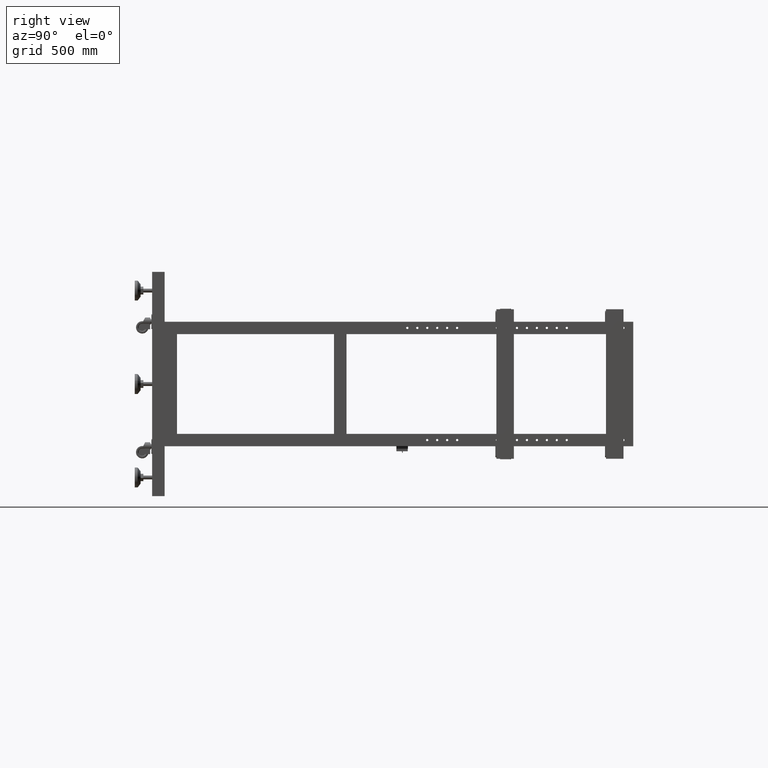
[diagram: clean part render]
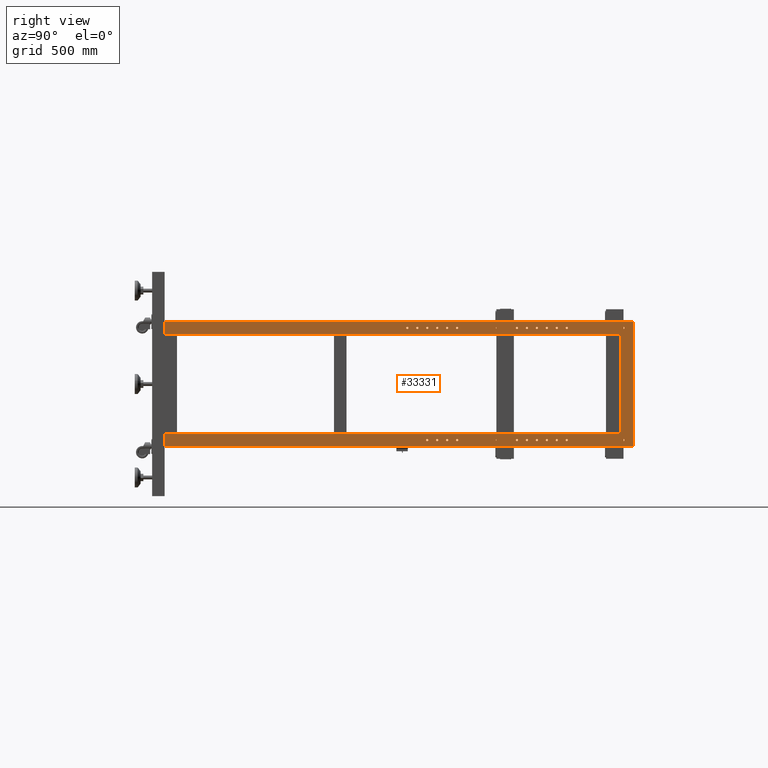
[diagram: same view with one face highlighted and labeled with its STEP entity id]
A machine part, right view. The second image highlights one B-rep face of the part: STEP entity #33331.
In plain terms, the highlighted planar face has unit normal (1, 0, 0).
Its self-contained STEP definition (entity closure, byte-faithful):
#14 = ORIENTED_EDGE ( 'NONE', *, *, #24868, .F. ) ;
#38 = CARTESIAN_POINT ( 'NONE',  ( 551.8275125628147180, 693.9410804020112664, 224.9999999999985789 ) ) ;
#68 = DIRECTION ( 'NONE',  ( 0.000000000000000000, 0.000000000000000000, -1.000000000000000000 ) ) ;
#172 = AXIS2_PLACEMENT_3D ( 'NONE', #15665, #40033, #64364 ) ;
#187 = EDGE_CURVE ( 'NONE', #34604, #30924, #15852, .T. ) ;
#247 = DIRECTION ( 'NONE',  ( 0.000000000000000000, 0.000000000000000000, -1.000000000000000000 ) ) ;
#267 = CIRCLE ( 'NONE', #66595, 4.500000000000003553 ) ;
#359 = DIRECTION ( 'NONE',  ( 1.000000000000000000, 2.768038506440323819E-16, -0.000000000000000000 ) ) ;
#1298 = CARTESIAN_POINT ( 'NONE',  ( 551.8275125628149453, 129.4410804020112664, -220.5000000000000000 ) ) ;
#1597 = EDGE_CURVE ( 'NONE', #5478, #23288, #73959, .T. ) ;
#1605 = CIRCLE ( 'NONE', #67908, 4.500000000000059508 ) ;
#1631 = CIRCLE ( 'NONE', #56443, 4.499999999999948486 ) ;
#1683 = DIRECTION ( 'NONE',  ( 1.000000000000000000, 2.768038506440323819E-16, 2.775557561562890365E-16 ) ) ;
#1814 = EDGE_CURVE ( 'NONE', #47569, #7200, #57425, .T. ) ;
#1850 = CARTESIAN_POINT ( 'NONE',  ( 551.8275125628147180, 893.9410804020113801, 224.9999999999999716 ) ) ;
#1886 = VERTEX_POINT ( 'NONE', #4573 ) ;
#1916 = EDGE_CURVE ( 'NONE', #30020, #3789, #42451, .T. ) ;
#2105 = DIRECTION ( 'NONE',  ( 1.000000000000000000, 2.768038506440323819E-16, 2.775557561562890365E-16 ) ) ;
#2246 = CARTESIAN_POINT ( 'NONE',  ( 551.8275125628147180, 684.9410804020112664, 224.9999999999985789 ) ) ;
#2711 = CIRCLE ( 'NONE', #47342, 4.499999999999893419 ) ;
#2854 = EDGE_LOOP ( 'NONE', ( #8191, #43339 ) ) ;
#2991 = FACE_BOUND ( 'NONE', #77434, .T. ) ;
#3027 = CARTESIAN_POINT ( 'NONE',  ( 551.8275125628149453, 173.9410804020112664, 224.9999999999949409 ) ) ;
#3101 = EDGE_CURVE ( 'NONE', #11251, #23384, #34761, .T. ) ;
#3530 = CARTESIAN_POINT ( 'NONE',  ( 551.8275125628147180, 569.4410804020113801, 224.9999999999977547 ) ) ;
#3550 = VERTEX_POINT ( 'NONE', #47182 ) ;
#3660 = AXIS2_PLACEMENT_3D ( 'NONE', #72988, #74932, #62596 ) ;
#3715 = EDGE_CURVE ( 'NONE', #50550, #72558, #30686, .T. ) ;
#3789 = VERTEX_POINT ( 'NONE', #31958 ) ;
#3841 = CARTESIAN_POINT ( 'NONE',  ( 551.8275125628151727, -844.5589195979887336, -200.0000000000000000 ) ) ;
#3844 = EDGE_CURVE ( 'NONE', #16552, #30366, #26802, .T. ) ;
#3853 = VERTEX_POINT ( 'NONE', #70227 ) ;
#4201 = CARTESIAN_POINT ( 'NONE',  ( 551.8275125628149453, 124.9410804020113517, 224.9999999999946851 ) ) ;
#4213 = DIRECTION ( 'NONE',  ( 1.000000000000000000, 2.768038506440323819E-16, -0.000000000000000000 ) ) ;
#4244 = VERTEX_POINT ( 'NONE', #67780 ) ;
#4443 = ORIENTED_EDGE ( 'NONE', *, *, #24583, .F. ) ;
#4482 = VERTEX_POINT ( 'NONE', #49715 ) ;
#4490 = VERTEX_POINT ( 'NONE', #13022 ) ;
#4573 = CARTESIAN_POINT ( 'NONE',  ( 551.8275125628151727, -819.5589195979886199, -219.5000000000000000 ) ) ;
#4592 = VECTOR ( 'NONE', #36119, 1000.000000000000000 ) ;
#4640 = CARTESIAN_POINT ( 'NONE',  ( 551.8275125628147180, 769.4410804020112664, -220.5000000000000000 ) ) ;
#4955 = VERTEX_POINT ( 'NONE', #76274 ) ;
#4972 = ORIENTED_EDGE ( 'NONE', *, *, #18707, .F. ) ;
#5020 = DIRECTION ( 'NONE',  ( 1.000000000000000000, 2.768038506440323819E-16, 2.775557561562890365E-16 ) ) ;
#5036 = EDGE_CURVE ( 'NONE', #22651, #69252, #52833, .T. ) ;
#5113 = EDGE_CURVE ( 'NONE', #17525, #54739, #51511, .T. ) ;
#5198 = AXIS2_PLACEMENT_3D ( 'NONE', #31171, #14394, #37563 ) ;
#5205 = AXIS2_PLACEMENT_3D ( 'NONE', #76026, #34167, #58506 ) ;
#5304 = EDGE_CURVE ( 'NONE', #52298, #15006, #6800, .T. ) ;
#5478 = VERTEX_POINT ( 'NONE', #49735 ) ;
#5579 = VERTEX_POINT ( 'NONE', #3027 ) ;
#5648 = VERTEX_POINT ( 'NONE', #57707 ) ;
#5689 = CARTESIAN_POINT ( 'NONE',  ( 551.8275125628151727, -819.5589195979886199, -225.0000000000000000 ) ) ;
#5725 = AXIS2_PLACEMENT_3D ( 'NONE', #32440, #14074, #56396 ) ;
#5762 = AXIS2_PLACEMENT_3D ( 'NONE', #32794, #16016, #70694 ) ;
#5921 = EDGE_CURVE ( 'NONE', #23288, #5478, #30507, .T. ) ;
#6094 = ORIENTED_EDGE ( 'NONE', *, *, #25966, .F. ) ;
#6125 = EDGE_LOOP ( 'NONE', ( #41148, #57273 ) ) ;
#6338 = ORIENTED_EDGE ( 'NONE', *, *, #71820, .F. ) ;
#6616 = CARTESIAN_POINT ( 'NONE',  ( 551.8275125628147180, 889.4410804020112664, -220.5000000000000000 ) ) ;
#6717 = AXIS2_PLACEMENT_3D ( 'NONE', #52170, #75293, #21053 ) ;
#6738 = FACE_BOUND ( 'NONE', #69226, .T. ) ;
#6793 = CIRCLE ( 'NONE', #16978, 4.499999999999948486 ) ;
#6800 = CIRCLE ( 'NONE', #43750, 4.500000000000003553 ) ;
#6844 = AXIS2_PLACEMENT_3D ( 'NONE', #15842, #45763, #58151 ) ;
#6936 = EDGE_LOOP ( 'NONE', ( #63570, #74034 ) ) ;
#6970 = DIRECTION ( 'NONE',  ( 1.000000000000000000, 2.768038506440323819E-16, -0.000000000000000000 ) ) ;
#7030 = EDGE_LOOP ( 'NONE', ( #6094, #69779 ) ) ;
#7059 = DIRECTION ( 'NONE',  ( 1.000000000000000000, 2.768038506440323819E-16, 2.775557561562890365E-16 ) ) ;
#7134 = FACE_BOUND ( 'NONE', #75499, .T. ) ;
#7144 = DIRECTION ( 'NONE',  ( 0.000000000000000000, 1.000000000000000000, 0.000000000000000000 ) ) ;
#7181 = CARTESIAN_POINT ( 'NONE',  ( 551.8275125628147180, 986.4410804020138812, -200.0000000000000284 ) ) ;
#7200 = VERTEX_POINT ( 'NONE', #62428 ) ;
#7398 = DIRECTION ( 'NONE',  ( 0.000000000000000000, 0.000000000000000000, -1.000000000000000000 ) ) ;
#7527 = FACE_BOUND ( 'NONE', #75051, .T. ) ;
#7683 = EDGE_CURVE ( 'NONE', #3789, #30020, #37512, .T. ) ;
#7743 = CARTESIAN_POINT ( 'NONE',  ( 551.8275125628147180, 689.4410804020112664, -225.0000000000000000 ) ) ;
#7916 = VERTEX_POINT ( 'NONE', #78619 ) ;
#7969 = CIRCLE ( 'NONE', #56392, 4.499999999999948486 ) ;
#8000 = CIRCLE ( 'NONE', #74215, 4.499999999999948486 ) ;
#8191 = ORIENTED_EDGE ( 'NONE', *, *, #5921, .F. ) ;
#8394 = EDGE_CURVE ( 'NONE', #63209, #65087, #64235, .T. ) ;
#8465 = CARTESIAN_POINT ( 'NONE',  ( 551.8275125628149453, 373.9410804020113233, 224.9999999999963336 ) ) ;
#8551 = DIRECTION ( 'NONE',  ( 1.000000000000000000, 2.768038506440323819E-16, -0.000000000000000000 ) ) ;
#8625 = DIRECTION ( 'NONE',  ( 1.000000000000000000, 2.768038506440323819E-16, 2.775557561562890365E-16 ) ) ;
#8633 = DIRECTION ( 'NONE',  ( -1.000000000000000000, -2.768038506440323819E-16, -1.224646799147353947E-16 ) ) ;
#8845 = ORIENTED_EDGE ( 'NONE', *, *, #7683, .F. ) ;
#8975 = FACE_BOUND ( 'NONE', #16019, .T. ) ;
#9052 = CARTESIAN_POINT ( 'NONE',  ( 551.8275125628147180, 529.4410804020112664, -220.5000000000000000 ) ) ;
#9111 = DIRECTION ( 'NONE',  ( 0.000000000000000000, 1.000000000000000000, 0.000000000000000000 ) ) ;
#9277 = ORIENTED_EDGE ( 'NONE', *, *, #9971, .F. ) ;
#9528 = CIRCLE ( 'NONE', #5725, 4.499999999999948486 ) ;
#9818 = EDGE_LOOP ( 'NONE', ( #26622, #14407, #18730, #66684, #75353, #31665, #41964, #54246 ) ) ;
#9935 = DIRECTION ( 'NONE',  ( 1.000000000000000000, 2.768038506440323819E-16, -0.000000000000000000 ) ) ;
#9971 = EDGE_CURVE ( 'NONE', #32016, #51647, #267, .T. ) ;
#9995 = CIRCLE ( 'NONE', #72403, 4.500000000000003553 ) ;
#10105 = DIRECTION ( 'NONE',  ( 1.000000000000000000, 2.768038506440323819E-16, 2.775557561562890365E-16 ) ) ;
#10235 = DIRECTION ( 'NONE',  ( -2.768038506440323819E-16, 1.000000000000000000, 0.000000000000000000 ) ) ;
#10313 = EDGE_CURVE ( 'NONE', #58942, #45369, #65270, .T. ) ;
#10351 = CARTESIAN_POINT ( 'NONE',  ( 551.8275125628149453, 249.4410804020112664, -220.5000000000000000 ) ) ;
#10471 = ORIENTED_EDGE ( 'NONE', *, *, #50232, .F. ) ;
#10568 = EDGE_LOOP ( 'NONE', ( #57785, #16601 ) ) ;
#10596 = CARTESIAN_POINT ( 'NONE',  ( 551.8275125628147180, 569.4410804020113801, 224.9999999999977547 ) ) ;
#10640 = CARTESIAN_POINT ( 'NONE',  ( 551.8275125628147180, 609.4410804020112664, -220.5000000000000000 ) ) ;
#10655 = ORIENTED_EDGE ( 'NONE', *, *, #44339, .F. ) ;
#10899 = ORIENTED_EDGE ( 'NONE', *, *, #19028, .F. ) ;
#11008 = VERTEX_POINT ( 'NONE', #42647 ) ;
#11102 = DIRECTION ( 'NONE',  ( 0.000000000000000000, 1.000000000000000000, 0.000000000000000000 ) ) ;
#11251 = VERTEX_POINT ( 'NONE', #10640 ) ;
#11446 = DIRECTION ( 'NONE',  ( 0.000000000000000000, 1.000000000000000000, 0.000000000000000000 ) ) ;
#11469 = CARTESIAN_POINT ( 'NONE',  ( 551.8275125628147180, 769.4410804020112664, -225.0000000000000000 ) ) ;
#11503 = ORIENTED_EDGE ( 'NONE', *, *, #29261, .F. ) ;
#11609 = CARTESIAN_POINT ( 'NONE',  ( 551.8275125628147180, 609.4410804020112664, -225.0000000000000000 ) ) ;
#11767 = LINE ( 'NONE', #24903, #4592 ) ;
#11776 = DIRECTION ( 'NONE',  ( 1.000000000000000000, 2.768038506440323819E-16, -0.000000000000000000 ) ) ;
#11778 = CIRCLE ( 'NONE', #13021, 4.500000000000059508 ) ;
#11804 = AXIS2_PLACEMENT_3D ( 'NONE', #43693, #33592, #7398 ) ;
#11911 = VERTEX_POINT ( 'NONE', #1298 ) ;
#11994 = ORIENTED_EDGE ( 'NONE', *, *, #71832, .T. ) ;
#12344 = AXIS2_PLACEMENT_3D ( 'NONE', #28443, #10105, #28838 ) ;
#12348 = FACE_BOUND ( 'NONE', #6125, .T. ) ;
#12423 = CARTESIAN_POINT ( 'NONE',  ( 551.8275125628149453, 133.9410804020113233, 224.9999999999946851 ) ) ;
#12469 = AXIS2_PLACEMENT_3D ( 'NONE', #14214, #31787, #44939 ) ;
#12560 = DIRECTION ( 'NONE',  ( 0.000000000000000000, 0.000000000000000000, -1.000000000000000000 ) ) ;
#12691 = ORIENTED_EDGE ( 'NONE', *, *, #59102, .F. ) ;
#12893 = DIRECTION ( 'NONE',  ( 1.000000000000000000, 2.768038506440323819E-16, 2.775557561562890365E-16 ) ) ;
#12920 = DIRECTION ( 'NONE',  ( 0.000000000000000000, 1.000000000000000000, 0.000000000000000000 ) ) ;
#12977 = CIRCLE ( 'NONE', #47392, 4.500000000000059508 ) ;
#13021 = AXIS2_PLACEMENT_3D ( 'NONE', #64938, #72481, #11446 ) ;
#13022 = CARTESIAN_POINT ( 'NONE',  ( 551.8275125628149453, 329.4410804020112664, -220.5000000000000000 ) ) ;
#13045 = DIRECTION ( 'NONE',  ( 1.000000000000000000, 2.768038506440323819E-16, 2.775557561562890365E-16 ) ) ;
#13141 = LINE ( 'NONE', #31491, #22098 ) ;
#13220 = CARTESIAN_POINT ( 'NONE',  ( 551.8275125628147180, 849.4410804020113801, 224.9999999999996874 ) ) ;
#13555 = VERTEX_POINT ( 'NONE', #71685 ) ;
#13627 = EDGE_LOOP ( 'NONE', ( #10899, #44289 ) ) ;
#13791 = ORIENTED_EDGE ( 'NONE', *, *, #49840, .F. ) ;
#13868 = CARTESIAN_POINT ( 'NONE',  ( 551.8275125628147180, 489.4410804020113233, 224.9999999999971863 ) ) ;
#13998 = CARTESIAN_POINT ( 'NONE',  ( 551.8275125628147180, 649.4410804020111527, -220.5000000000000000 ) ) ;
#14059 = CIRCLE ( 'NONE', #57417, 4.499999999999948486 ) ;
#14074 = DIRECTION ( 'NONE',  ( 1.000000000000000000, 2.768038506440323819E-16, -0.000000000000000000 ) ) ;
#14117 = AXIS2_PLACEMENT_3D ( 'NONE', #59816, #34698, #53436 ) ;
#14214 = CARTESIAN_POINT ( 'NONE',  ( 551.8275125628147180, 769.4410804020112664, 224.9999999999991473 ) ) ;
#14394 = DIRECTION ( 'NONE',  ( 1.000000000000000000, 2.768038506440323819E-16, -0.000000000000000000 ) ) ;
#14398 = CARTESIAN_POINT ( 'NONE',  ( 551.8275125628149453, 244.9410804020113233, 224.9999999999955094 ) ) ;
#14399 = DIRECTION ( 'NONE',  ( 1.000000000000000000, 2.768038506440323819E-16, 2.775557561562895295E-16 ) ) ;
#14407 = ORIENTED_EDGE ( 'NONE', *, *, #32714, .F. ) ;
#14416 = CARTESIAN_POINT ( 'NONE',  ( 551.8275125628147180, 769.4410804020112664, 224.9999999999991473 ) ) ;
#14445 = DIRECTION ( 'NONE',  ( 0.000000000000000000, 1.000000000000000000, 0.000000000000000000 ) ) ;
#14865 = CIRCLE ( 'NONE', #39092, 4.500000000000003553 ) ;
#14928 = DIRECTION ( 'NONE',  ( 0.000000000000000000, 1.000000000000000000, 0.000000000000000000 ) ) ;
#14929 = ORIENTED_EDGE ( 'NONE', *, *, #56023, .F. ) ;
#14972 = FACE_BOUND ( 'NONE', #71096, .T. ) ;
#15006 = VERTEX_POINT ( 'NONE', #69248 ) ;
#15071 = EDGE_CURVE ( 'NONE', #38817, #68795, #37003, .T. ) ;
#15245 = CARTESIAN_POINT ( 'NONE',  ( 551.8275125628151727, -844.5589195979887336, -250.0000000000000000 ) ) ;
#15314 = DIRECTION ( 'NONE',  ( 0.000000000000000000, 0.000000000000000000, -1.000000000000000000 ) ) ;
#15350 = CARTESIAN_POINT ( 'NONE',  ( 551.8275125628151727, -844.5589195979887336, -250.0000000000000000 ) ) ;
#15410 = EDGE_CURVE ( 'NONE', #25248, #68050, #39773, .T. ) ;
#15568 = DIRECTION ( 'NONE',  ( 0.000000000000000000, 1.000000000000000000, 0.000000000000000000 ) ) ;
#15621 = CIRCLE ( 'NONE', #69109, 5.500000000000087930 ) ;
#15665 = CARTESIAN_POINT ( 'NONE',  ( 551.8275125628149453, 369.4410804020112664, 224.9999999999963336 ) ) ;
#15761 = FACE_BOUND ( 'NONE', #21404, .T. ) ;
#15803 = AXIS2_PLACEMENT_3D ( 'NONE', #13868, #25826, #20240 ) ;
#15842 = CARTESIAN_POINT ( 'NONE',  ( 551.8275125628149453, 129.4410804020112664, -225.0000000000000000 ) ) ;
#15849 = CARTESIAN_POINT ( 'NONE',  ( 551.8275125628149453, 213.9410804020112948, 224.9999999999952252 ) ) ;
#15852 = CIRCLE ( 'NONE', #50265, 4.500000000000003553 ) ;
#16005 = ORIENTED_EDGE ( 'NONE', *, *, #61347, .F. ) ;
#16016 = DIRECTION ( 'NONE',  ( 1.000000000000000000, 2.768038506440323819E-16, -0.000000000000000000 ) ) ;
#16019 = EDGE_LOOP ( 'NONE', ( #61276, #46587 ) ) ;
#16144 = CIRCLE ( 'NONE', #30163, 4.500000000000059508 ) ;
#16158 = FACE_BOUND ( 'NONE', #50794, .T. ) ;
#16257 = AXIS2_PLACEMENT_3D ( 'NONE', #50649, #50263, #49091 ) ;
#16372 = AXIS2_PLACEMENT_3D ( 'NONE', #57150, #27981, #45559 ) ;
#16386 = EDGE_LOOP ( 'NONE', ( #24825, #56409 ) ) ;
#16507 = EDGE_LOOP ( 'NONE', ( #21902, #24742 ) ) ;
#16543 = ORIENTED_EDGE ( 'NONE', *, *, #69417, .F. ) ;
#16552 = VERTEX_POINT ( 'NONE', #74352 ) ;
#16601 = ORIENTED_EDGE ( 'NONE', *, *, #21338, .F. ) ;
#16706 = DIRECTION ( 'NONE',  ( 1.000000000000000000, 2.768038506440323819E-16, -0.000000000000000000 ) ) ;
#16713 = ORIENTED_EDGE ( 'NONE', *, *, #43089, .T. ) ;
#16837 = CIRCLE ( 'NONE', #51229, 4.500000000000059508 ) ;
#16933 = FACE_BOUND ( 'NONE', #6936, .T. ) ;
#16978 = AXIS2_PLACEMENT_3D ( 'NONE', #62786, #26068, #39938 ) ;
#17141 = CARTESIAN_POINT ( 'NONE',  ( 551.8275125628149453, 369.4410804020112664, -225.0000000000000000 ) ) ;
#17286 = CARTESIAN_POINT ( 'NONE',  ( 551.8275125628156275, 1036.441080402011266, -250.0000000000000000 ) ) ;
#17347 = EDGE_CURVE ( 'NONE', #68050, #25248, #47338, .T. ) ;
#17495 = EDGE_CURVE ( 'NONE', #48960, #59559, #66629, .T. ) ;
#17505 = EDGE_CURVE ( 'NONE', #5579, #7916, #12977, .T. ) ;
#17525 = VERTEX_POINT ( 'NONE', #61398 ) ;
#17582 = DIRECTION ( 'NONE',  ( 1.000000000000000000, 2.768038506440323819E-16, 2.775557561562890365E-16 ) ) ;
#17678 = AXIS2_PLACEMENT_3D ( 'NONE', #40772, #47143, #27189 ) ;
#17878 = EDGE_CURVE ( 'NONE', #31923, #62681, #49995, .T. ) ;
#17901 = VERTEX_POINT ( 'NONE', #62106 ) ;
#17922 = DIRECTION ( 'NONE',  ( 1.000000000000000000, 2.768038506440323819E-16, -0.000000000000000000 ) ) ;
#18167 = ORIENTED_EDGE ( 'NONE', *, *, #17878, .F. ) ;
#18414 = LINE ( 'NONE', #48351, #54705 ) ;
#18420 = DIRECTION ( 'NONE',  ( 1.000000000000000000, 2.768038506440323819E-16, -0.000000000000000000 ) ) ;
#18518 = VERTEX_POINT ( 'NONE', #65059 ) ;
#18706 = FACE_BOUND ( 'NONE', #36296, .T. ) ;
#18707 = EDGE_CURVE ( 'NONE', #73600, #43469, #2711, .T. ) ;
#18730 = ORIENTED_EDGE ( 'NONE', *, *, #35629, .T. ) ;
#18866 = CIRCLE ( 'NONE', #73653, 4.500000000000059508 ) ;
#19028 = EDGE_CURVE ( 'NONE', #44516, #50927, #56348, .T. ) ;
#19076 = FACE_BOUND ( 'NONE', #57694, .T. ) ;
#19166 = AXIS2_PLACEMENT_3D ( 'NONE', #32218, #31028, #50573 ) ;
#19540 = EDGE_CURVE ( 'NONE', #17901, #32919, #69447, .T. ) ;
#19645 = CIRCLE ( 'NONE', #66842, 4.500000000000059508 ) ;
#19794 = ORIENTED_EDGE ( 'NONE', *, *, #3844, .F. ) ;
#19885 = CARTESIAN_POINT ( 'NONE',  ( 551.8275125628156275, 1036.441080402011266, 248.0000000000000000 ) ) ;
#20032 = DIRECTION ( 'NONE',  ( 0.000000000000000000, 0.000000000000000000, -1.000000000000000000 ) ) ;
#20055 = ORIENTED_EDGE ( 'NONE', *, *, #28152, .F. ) ;
#20095 = CARTESIAN_POINT ( 'NONE',  ( 551.8275125628149453, 329.4410804020112664, -229.5000000000000000 ) ) ;
#20147 = EDGE_LOOP ( 'NONE', ( #24127, #68517 ) ) ;
#20199 = DIRECTION ( 'NONE',  ( 0.000000000000000000, 1.000000000000000000, 0.000000000000000000 ) ) ;
#20240 = DIRECTION ( 'NONE',  ( 0.000000000000000000, 1.000000000000000000, 0.000000000000000000 ) ) ;
#20475 = CIRCLE ( 'NONE', #59976, 4.500000000000059508 ) ;
#20590 = CARTESIAN_POINT ( 'NONE',  ( 551.8275125628151727, -819.5589195979886199, -225.0000000000000000 ) ) ;
#20776 = AXIS2_PLACEMENT_3D ( 'NONE', #71582, #52449, #64440 ) ;
#21053 = DIRECTION ( 'NONE',  ( 0.000000000000000000, 0.000000000000000000, -1.000000000000000000 ) ) ;
#21071 = EDGE_CURVE ( 'NONE', #71237, #43484, #14865, .T. ) ;
#21169 = CARTESIAN_POINT ( 'NONE',  ( 551.8275125628149453, 209.4410804020113517, 224.9999999999952252 ) ) ;
#21338 = EDGE_CURVE ( 'NONE', #30924, #34604, #68408, .T. ) ;
#21344 = DIRECTION ( 'NONE',  ( 1.000000000000000000, 2.768038506440323819E-16, 2.775557561562890365E-16 ) ) ;
#21385 = DIRECTION ( 'NONE',  ( 0.000000000000000000, 0.000000000000000000, 1.000000000000000000 ) ) ;
#21404 = EDGE_LOOP ( 'NONE', ( #8845, #70218 ) ) ;
#21497 = DIRECTION ( 'NONE',  ( 0.000000000000000000, 0.000000000000000000, -1.000000000000000000 ) ) ;
#21570 = DIRECTION ( 'NONE',  ( 0.000000000000000000, 1.000000000000000000, 0.000000000000000000 ) ) ;
#21703 = VERTEX_POINT ( 'NONE', #33030 ) ;
#21727 = DIRECTION ( 'NONE',  ( 0.000000000000000000, 0.000000000000000000, -1.000000000000000000 ) ) ;
#21863 = CARTESIAN_POINT ( 'NONE',  ( 551.8275125628147180, 409.4410804020112096, -225.0000000000000000 ) ) ;
#21902 = ORIENTED_EDGE ( 'NONE', *, *, #32857, .F. ) ;
#22060 = AXIS2_PLACEMENT_3D ( 'NONE', #59529, #29177, #53530 ) ;
#22098 = VECTOR ( 'NONE', #61425, 1000.000000000000000 ) ;
#22132 = DIRECTION ( 'NONE',  ( 0.000000000000000000, 1.000000000000000000, 0.000000000000000000 ) ) ;
#22147 = ORIENTED_EDGE ( 'NONE', *, *, #3101, .F. ) ;
#22271 = CIRCLE ( 'NONE', #33778, 4.500000000000003553 ) ;
#22412 = CARTESIAN_POINT ( 'NONE',  ( 551.8275125628149453, 253.9410804020113517, 224.9999999999955094 ) ) ;
#22427 = CIRCLE ( 'NONE', #67049, 4.500000000000003553 ) ;
#22651 = VERTEX_POINT ( 'NONE', #24313 ) ;
#22826 = DIRECTION ( 'NONE',  ( 0.000000000000000000, 0.000000000000000000, 1.000000000000000000 ) ) ;
#23288 = VERTEX_POINT ( 'NONE', #1850 ) ;
#23384 = VERTEX_POINT ( 'NONE', #76406 ) ;
#23390 = DIRECTION ( 'NONE',  ( 1.000000000000000000, 2.768038506440323819E-16, -0.000000000000000000 ) ) ;
#23787 = AXIS2_PLACEMENT_3D ( 'NONE', #50530, #74841, #20199 ) ;
#23790 = EDGE_LOOP ( 'NONE', ( #78974, #65444 ) ) ;
#23919 = DIRECTION ( 'NONE',  ( 1.000000000000000000, 2.768038506440323819E-16, 2.775557561562890365E-16 ) ) ;
#24127 = ORIENTED_EDGE ( 'NONE', *, *, #52402, .F. ) ;
#24303 = CARTESIAN_POINT ( 'NONE',  ( 551.8275125628158548, 996.4410804020113801, -225.0000000000000000 ) ) ;
#24313 = CARTESIAN_POINT ( 'NONE',  ( 551.8275125628147180, 569.4410804020112664, -220.5000000000000000 ) ) ;
#24471 = CIRCLE ( 'NONE', #38487, 4.499999999999948486 ) ;
#24556 = AXIS2_PLACEMENT_3D ( 'NONE', #11609, #41939, #29552 ) ;
#24583 = EDGE_CURVE ( 'NONE', #15006, #52298, #39604, .T. ) ;
#24698 = DIRECTION ( 'NONE',  ( 0.000000000000000000, 0.000000000000000000, 1.000000000000000000 ) ) ;
#24742 = ORIENTED_EDGE ( 'NONE', *, *, #10313, .F. ) ;
#24784 = AXIS2_PLACEMENT_3D ( 'NONE', #36517, #60850, #61225 ) ;
#24825 = ORIENTED_EDGE ( 'NONE', *, *, #27311, .F. ) ;
#24831 = CIRCLE ( 'NONE', #52873, 4.500000000000003553 ) ;
#24857 = EDGE_CURVE ( 'NONE', #71688, #49076, #67727, .T. ) ;
#24868 = EDGE_CURVE ( 'NONE', #27842, #73416, #32011, .T. ) ;
#24903 = CARTESIAN_POINT ( 'NONE',  ( 551.8275125628147180, 986.4410804020138812, 199.9999999999999716 ) ) ;
#24984 = ORIENTED_EDGE ( 'NONE', *, *, #29236, .F. ) ;
#25081 = DIRECTION ( 'NONE',  ( 0.000000000000000000, 1.000000000000000000, 0.000000000000000000 ) ) ;
#25190 = VERTEX_POINT ( 'NONE', #7181 ) ;
#25248 = VERTEX_POINT ( 'NONE', #68217 ) ;
#25274 = CIRCLE ( 'NONE', #3660, 4.500000000000003553 ) ;
#25344 = CARTESIAN_POINT ( 'NONE',  ( 551.8275125628147180, 533.9410804020112664, 224.9999999999974705 ) ) ;
#25364 = DIRECTION ( 'NONE',  ( 1.000000000000000000, 2.768038506440323819E-16, 2.775557561562890365E-16 ) ) ;
#25390 = CARTESIAN_POINT ( 'NONE',  ( 551.8275125628149453, 249.4410804020112664, -225.0000000000000000 ) ) ;
#25524 = CARTESIAN_POINT ( 'NONE',  ( 551.8275125628156275, 1036.441080402011266, 250.0000000000000000 ) ) ;
#25603 = CARTESIAN_POINT ( 'NONE',  ( 551.8275125628147180, 653.9410804020113801, 224.9999999999983231 ) ) ;
#25760 = ORIENTED_EDGE ( 'NONE', *, *, #63730, .F. ) ;
#25795 = CIRCLE ( 'NONE', #11804, 4.500000000000003553 ) ;
#25826 = DIRECTION ( 'NONE',  ( 1.000000000000000000, 2.768038506440323819E-16, -0.000000000000000000 ) ) ;
#25897 = AXIS2_PLACEMENT_3D ( 'NONE', #20590, #8633, #21385 ) ;
#25966 = EDGE_CURVE ( 'NONE', #74880, #28105, #58801, .T. ) ;
#26068 = DIRECTION ( 'NONE',  ( -1.000000000000000000, 2.783076616685456911E-16, -0.000000000000000000 ) ) ;
#26185 = CARTESIAN_POINT ( 'NONE',  ( 551.8275125628149453, 289.4410804020112096, -220.5000000000000000 ) ) ;
#26199 = ORIENTED_EDGE ( 'NONE', *, *, #3715, .F. ) ;
#26233 = CARTESIAN_POINT ( 'NONE',  ( 551.8275125628158548, 991.9410804020112664, 224.9999999999999716 ) ) ;
#26239 = EDGE_CURVE ( 'NONE', #23384, #11251, #58982, .T. ) ;
#26522 = DIRECTION ( 'NONE',  ( 0.000000000000000000, 1.000000000000000000, 0.000000000000000000 ) ) ;
#26534 = CARTESIAN_POINT ( 'NONE',  ( 551.8275125628147180, 409.4410804020113233, 224.9999999999966178 ) ) ;
#26559 = ORIENTED_EDGE ( 'NONE', *, *, #5113, .T. ) ;
#26622 = ORIENTED_EDGE ( 'NONE', *, *, #45294, .F. ) ;
#26730 = DIRECTION ( 'NONE',  ( 0.000000000000000000, 0.000000000000000000, -1.000000000000000000 ) ) ;
#26753 = DIRECTION ( 'NONE',  ( 1.000000000000000000, 2.768038506440323819E-16, -0.000000000000000000 ) ) ;
#26774 = CARTESIAN_POINT ( 'NONE',  ( 551.8275125628147180, 809.4410804020113801, 224.9999999999994316 ) ) ;
#26802 = CIRCLE ( 'NONE', #38341, 4.499999999999948486 ) ;
#26907 = CARTESIAN_POINT ( 'NONE',  ( 551.8275125628147180, 689.4410804020112664, -229.5000000000000000 ) ) ;
#27041 = CIRCLE ( 'NONE', #35971, 4.499999999999948486 ) ;
#27159 = EDGE_CURVE ( 'NONE', #32496, #47410, #71655, .T. ) ;
#27189 = DIRECTION ( 'NONE',  ( 0.000000000000000000, 0.000000000000000000, -1.000000000000000000 ) ) ;
#27194 = CIRCLE ( 'NONE', #25897, 5.500000000000087930 ) ;
#27311 = EDGE_CURVE ( 'NONE', #43484, #71237, #25795, .T. ) ;
#27312 = CIRCLE ( 'NONE', #77050, 4.499999999999893419 ) ;
#27331 = FACE_BOUND ( 'NONE', #32737, .T. ) ;
#27631 = DIRECTION ( 'NONE',  ( 1.000000000000000000, 2.768038506440323819E-16, 2.775557561562890365E-16 ) ) ;
#27656 = DIRECTION ( 'NONE',  ( 1.000000000000000000, 2.768038506440323819E-16, -0.000000000000000000 ) ) ;
#27842 = VERTEX_POINT ( 'NONE', #54623 ) ;
#27981 = DIRECTION ( 'NONE',  ( 1.000000000000000000, 2.768038506440323819E-16, 2.775557561562890365E-16 ) ) ;
#28008 = LINE ( 'NONE', #15245, #74197 ) ;
#28105 = VERTEX_POINT ( 'NONE', #9052 ) ;
#28152 = EDGE_CURVE ( 'NONE', #11911, #74801, #51441, .T. ) ;
#28443 = CARTESIAN_POINT ( 'NONE',  ( 551.8275125628147180, 849.4410804020112664, -225.0000000000000000 ) ) ;
#28484 = DIRECTION ( 'NONE',  ( 1.000000000000000000, 2.768038506440323819E-16, 2.775557561562890365E-16 ) ) ;
#28520 = FACE_BOUND ( 'NONE', #45993, .T. ) ;
#28698 = AXIS2_PLACEMENT_3D ( 'NONE', #14416, #26753, #21570 ) ;
#28720 = DIRECTION ( 'NONE',  ( 0.000000000000000000, 0.000000000000000000, -1.000000000000000000 ) ) ;
#28746 = VECTOR ( 'NONE', #10235, 1000.000000000000000 ) ;
#28830 = CARTESIAN_POINT ( 'NONE',  ( 551.8275125628147180, 649.4410804020112664, 224.9999999999983231 ) ) ;
#28838 = DIRECTION ( 'NONE',  ( 0.000000000000000000, 0.000000000000000000, -1.000000000000000000 ) ) ;
#28938 = DIRECTION ( 'NONE',  ( 1.000000000000000000, 2.768038506440323819E-16, -0.000000000000000000 ) ) ;
#29048 = EDGE_CURVE ( 'NONE', #72558, #50550, #19645, .T. ) ;
#29177 = DIRECTION ( 'NONE',  ( -1.000000000000000000, 2.783076616685456911E-16, -0.000000000000000000 ) ) ;
#29236 = EDGE_CURVE ( 'NONE', #64730, #5648, #9528, .T. ) ;
#29261 = EDGE_CURVE ( 'NONE', #3853, #4244, #24831, .T. ) ;
#29359 = AXIS2_PLACEMENT_3D ( 'NONE', #26534, #38531, #64048 ) ;
#29552 = DIRECTION ( 'NONE',  ( 0.000000000000000000, 0.000000000000000000, -1.000000000000000000 ) ) ;
#29557 = EDGE_CURVE ( 'NONE', #59559, #18518, #18414, .T. ) ;
#29574 = DIRECTION ( 'NONE',  ( 1.000000000000000000, 2.768038506440323819E-16, 2.775557561562890365E-16 ) ) ;
#29684 = CARTESIAN_POINT ( 'NONE',  ( 551.8275125628149453, 129.4410804020112664, 224.9999999999946851 ) ) ;
#29784 = CIRCLE ( 'NONE', #76195, 4.500000000000003553 ) ;
#29821 = ORIENTED_EDGE ( 'NONE', *, *, #17505, .F. ) ;
#29951 = CIRCLE ( 'NONE', #64363, 4.500000000000003553 ) ;
#29993 = ORIENTED_EDGE ( 'NONE', *, *, #62657, .F. ) ;
#30020 = VERTEX_POINT ( 'NONE', #60634 ) ;
#30163 = AXIS2_PLACEMENT_3D ( 'NONE', #47029, #77705, #59393 ) ;
#30343 = CARTESIAN_POINT ( 'NONE',  ( 551.8275125628156275, 986.4410804020111527, 248.0000000000000000 ) ) ;
#30366 = VERTEX_POINT ( 'NONE', #54553 ) ;
#30507 = CIRCLE ( 'NONE', #34357, 4.499999999999948486 ) ;
#30517 = CARTESIAN_POINT ( 'NONE',  ( 551.8275125628147180, 484.9410804020113233, 224.9999999999972147 ) ) ;
#30589 = VERTEX_POINT ( 'NONE', #58774 ) ;
#30686 = CIRCLE ( 'NONE', #5198, 4.500000000000059508 ) ;
#30691 = EDGE_LOOP ( 'NONE', ( #57298, #10471 ) ) ;
#30745 = EDGE_LOOP ( 'NONE', ( #78882, #14929 ) ) ;
#30784 = EDGE_LOOP ( 'NONE', ( #46608, #44503 ) ) ;
#30822 = EDGE_CURVE ( 'NONE', #51199, #49896, #14059, .T. ) ;
#30884 = DIRECTION ( 'NONE',  ( 0.000000000000000000, 1.000000000000000000, 0.000000000000000000 ) ) ;
#30924 = VERTEX_POINT ( 'NONE', #13998 ) ;
#31028 = DIRECTION ( 'NONE',  ( 1.000000000000000000, 2.768038506440323819E-16, -0.000000000000000000 ) ) ;
#31064 = FACE_BOUND ( 'NONE', #47163, .T. ) ;
#31067 = CARTESIAN_POINT ( 'NONE',  ( 551.8275125628149453, 169.4410804020112948, 224.9999999999949409 ) ) ;
#31168 = DIRECTION ( 'NONE',  ( 1.000000000000000000, 2.768038506440323819E-16, 2.775557561562890365E-16 ) ) ;
#31171 = CARTESIAN_POINT ( 'NONE',  ( 551.8275125628149453, 129.4410804020112664, 224.9999999999946851 ) ) ;
#31245 = DIRECTION ( 'NONE',  ( 0.000000000000000000, 0.000000000000000000, -1.000000000000000000 ) ) ;
#31462 = FACE_BOUND ( 'NONE', #30784, .T. ) ;
#31491 = CARTESIAN_POINT ( 'NONE',  ( 551.8275125628151727, -844.5589195979887336, -250.0000000000000000 ) ) ;
#31573 = AXIS2_PLACEMENT_3D ( 'NONE', #35167, #17582, #59505 ) ;
#31665 = ORIENTED_EDGE ( 'NONE', *, *, #52432, .T. ) ;
#31787 = DIRECTION ( 'NONE',  ( 1.000000000000000000, 2.768038506440323819E-16, -0.000000000000000000 ) ) ;
#31834 = ORIENTED_EDGE ( 'NONE', *, *, #15071, .F. ) ;
#31876 = EDGE_LOOP ( 'NONE', ( #69981, #64966 ) ) ;
#31923 = VERTEX_POINT ( 'NONE', #77979 ) ;
#31958 = CARTESIAN_POINT ( 'NONE',  ( 551.8275125628147180, 733.9410804020113801, 224.9999999999988631 ) ) ;
#32002 = DIRECTION ( 'NONE',  ( 0.000000000000000000, 0.000000000000000000, -1.000000000000000000 ) ) ;
#32011 = CIRCLE ( 'NONE', #77906, 4.499999999999948486 ) ;
#32016 = VERTEX_POINT ( 'NONE', #67997 ) ;
#32100 = VERTEX_POINT ( 'NONE', #50805 ) ;
#32108 = AXIS2_PLACEMENT_3D ( 'NONE', #61585, #12893, #31245 ) ;
#32194 = CIRCLE ( 'NONE', #76774, 4.499999999999893419 ) ;
#32218 = CARTESIAN_POINT ( 'NONE',  ( 551.8275125628147180, 689.4410804020113801, 224.9999999999985789 ) ) ;
#32289 = DIRECTION ( 'NONE',  ( 1.000000000000000000, 2.768038506440323819E-16, -0.000000000000000000 ) ) ;
#32440 = CARTESIAN_POINT ( 'NONE',  ( 551.8275125628147180, 609.4410804020113801, 224.9999999999980389 ) ) ;
#32496 = VERTEX_POINT ( 'NONE', #25344 ) ;
#32602 = ORIENTED_EDGE ( 'NONE', *, *, #44237, .F. ) ;
#32714 = EDGE_CURVE ( 'NONE', #3550, #13555, #28008, .T. ) ;
#32735 = CIRCLE ( 'NONE', #77315, 4.500000000000003553 ) ;
#32737 = EDGE_LOOP ( 'NONE', ( #29821, #34068 ) ) ;
#32794 = CARTESIAN_POINT ( 'NONE',  ( 551.8275125628147180, 689.4410804020113801, 224.9999999999985789 ) ) ;
#32857 = EDGE_CURVE ( 'NONE', #45369, #58942, #67896, .T. ) ;
#32919 = VERTEX_POINT ( 'NONE', #73457 ) ;
#33030 = CARTESIAN_POINT ( 'NONE',  ( 551.8275125628147180, 449.4410804020112664, -220.5000000000000000 ) ) ;
#33189 = CARTESIAN_POINT ( 'NONE',  ( 551.8275125628151727, -819.5589195979886199, -230.5000000000000000 ) ) ;
#33313 = FACE_BOUND ( 'NONE', #23790, .T. ) ;
#33331 = ADVANCED_FACE ( 'NONE', ( #37054, #61394, #67768, #7527, #51273, #39319, #67018, #31462, #75600, #12348, #57671, #63649, #18706, #19076, #49044, #6738, #8975, #33313, #43057, #14972, #67392, #2991, #31064, #73741, #43426, #61802, #27331, #7134, #76793, #34919, #47272, #70829, #76383, #59265, #28520, #16158, #53654, #39714, #16933, #45688, #15761, #70016, #41302, #77963 ), #40521, .T. ) ;
#33423 = AXIS2_PLACEMENT_3D ( 'NONE', #53718, #23390, #61263 ) ;
#33592 = DIRECTION ( 'NONE',  ( 1.000000000000000000, 2.768038506440323819E-16, 2.775557561562890365E-16 ) ) ;
#33705 = CIRCLE ( 'NONE', #78293, 4.499999999999948486 ) ;
#33753 = DIRECTION ( 'NONE',  ( 0.000000000000000000, 1.000000000000000000, 0.000000000000000000 ) ) ;
#33778 = AXIS2_PLACEMENT_3D ( 'NONE', #11469, #60154, #35811 ) ;
#33871 = EDGE_CURVE ( 'NONE', #21703, #76567, #29784, .T. ) ;
#33981 = DIRECTION ( 'NONE',  ( 1.000000000000000000, 2.768038506440323819E-16, -0.000000000000000000 ) ) ;
#34041 = CIRCLE ( 'NONE', #44216, 4.500000000000003553 ) ;
#34042 = DIRECTION ( 'NONE',  ( 1.000000000000000000, 2.768038506440323819E-16, -0.000000000000000000 ) ) ;
#34068 = ORIENTED_EDGE ( 'NONE', *, *, #40518, .F. ) ;
#34088 = EDGE_CURVE ( 'NONE', #72678, #30589, #9995, .T. ) ;
#34167 = DIRECTION ( 'NONE',  ( 1.000000000000000000, 2.768038506440323819E-16, 2.775557561562890365E-16 ) ) ;
#34357 = AXIS2_PLACEMENT_3D ( 'NONE', #48884, #6970, #42897 ) ;
#34380 = EDGE_CURVE ( 'NONE', #65087, #63209, #25274, .T. ) ;
#34571 = EDGE_LOOP ( 'NONE', ( #29993, #20055 ) ) ;
#34604 = VERTEX_POINT ( 'NONE', #39045 ) ;
#34635 = ORIENTED_EDGE ( 'NONE', *, *, #1814, .F. ) ;
#34698 = DIRECTION ( 'NONE',  ( 1.000000000000000000, 2.768038506440323819E-16, -0.000000000000000000 ) ) ;
#34761 = CIRCLE ( 'NONE', #6717, 4.500000000000003553 ) ;
#34919 = FACE_BOUND ( 'NONE', #53032, .T. ) ;
#35117 = DIRECTION ( 'NONE',  ( 1.000000000000000000, 2.768038506440323819E-16, 2.775557561562890365E-16 ) ) ;
#35135 = EDGE_LOOP ( 'NONE', ( #25760, #40575 ) ) ;
#35160 = DIRECTION ( 'NONE',  ( 0.000000000000000000, 1.000000000000000000, 0.000000000000000000 ) ) ;
#35167 = CARTESIAN_POINT ( 'NONE',  ( 551.8275125628147180, 529.4410804020112664, -225.0000000000000000 ) ) ;
#35365 = DIRECTION ( 'NONE',  ( 1.000000000000000000, 2.768038506440323819E-16, 2.775557561562890365E-16 ) ) ;
#35579 = CARTESIAN_POINT ( 'NONE',  ( 551.8275125628147180, 569.4410804020112664, -225.0000000000000000 ) ) ;
#35599 = DIRECTION ( 'NONE',  ( 0.000000000000000000, 1.000000000000000000, 0.000000000000000000 ) ) ;
#35629 = EDGE_CURVE ( 'NONE', #3550, #48960, #13141, .T. ) ;
#35697 = CARTESIAN_POINT ( 'NONE',  ( 551.8275125628147180, 849.4410804020112664, -220.5000000000000000 ) ) ;
#35811 = DIRECTION ( 'NONE',  ( 0.000000000000000000, 0.000000000000000000, -1.000000000000000000 ) ) ;
#35827 = DIRECTION ( 'NONE',  ( 0.000000000000000000, 0.000000000000000000, -1.000000000000000000 ) ) ;
#35971 = AXIS2_PLACEMENT_3D ( 'NONE', #28830, #34042, #53184 ) ;
#36119 = DIRECTION ( 'NONE',  ( 1.276803850644032213E-15, -1.000000000000000000, -0.000000000000000000 ) ) ;
#36296 = EDGE_LOOP ( 'NONE', ( #32602, #74453 ) ) ;
#36380 = DIRECTION ( 'NONE',  ( 0.000000000000000000, 0.000000000000000000, -1.000000000000000000 ) ) ;
#36517 = CARTESIAN_POINT ( 'NONE',  ( 551.8275125628147180, 489.4410804020112664, -225.0000000000000000 ) ) ;
#36815 = EDGE_CURVE ( 'NONE', #55079, #78688, #22271, .T. ) ;
#37003 = CIRCLE ( 'NONE', #29359, 4.500000000000059508 ) ;
#37054 = FACE_OUTER_BOUND ( 'NONE', #9818, .T. ) ;
#37194 = VECTOR ( 'NONE', #24698, 1000.000000000000000 ) ;
#37299 = EDGE_CURVE ( 'NONE', #55114, #38345, #42738, .T. ) ;
#37333 = DIRECTION ( 'NONE',  ( 1.000000000000000000, 2.768038506440323819E-16, -0.000000000000000000 ) ) ;
#37372 = CARTESIAN_POINT ( 'NONE',  ( 551.8275125628147180, 689.4410804020112664, -225.0000000000000000 ) ) ;
#37512 = CIRCLE ( 'NONE', #51518, 4.499999999999948486 ) ;
#37563 = DIRECTION ( 'NONE',  ( 0.000000000000000000, 1.000000000000000000, 0.000000000000000000 ) ) ;
#37599 = CARTESIAN_POINT ( 'NONE',  ( 551.8275125628147180, 404.9410804020113801, 224.9999999999966178 ) ) ;
#37613 = CARTESIAN_POINT ( 'NONE',  ( 551.8275125628147180, 729.4410804020112664, 224.9999999999988631 ) ) ;
#37895 = CARTESIAN_POINT ( 'NONE',  ( 551.8275125628149453, 129.4410804020112664, -229.5000000000000000 ) ) ;
#37944 = VERTEX_POINT ( 'NONE', #47802 ) ;
#38041 = EDGE_CURVE ( 'NONE', #50927, #44516, #27312, .T. ) ;
#38111 = EDGE_LOOP ( 'NONE', ( #26199, #66976 ) ) ;
#38205 = CARTESIAN_POINT ( 'NONE',  ( 551.8275125628158548, 1000.941080402011380, 224.9999999999999716 ) ) ;
#38341 = AXIS2_PLACEMENT_3D ( 'NONE', #13220, #61906, #55920 ) ;
#38345 = VERTEX_POINT ( 'NONE', #72803 ) ;
#38487 = AXIS2_PLACEMENT_3D ( 'NONE', #10596, #28938, #41324 ) ;
#38531 = DIRECTION ( 'NONE',  ( 1.000000000000000000, 2.768038506440323819E-16, -0.000000000000000000 ) ) ;
#38579 = AXIS2_PLACEMENT_3D ( 'NONE', #49962, #1683, #32002 ) ;
#38758 = DIRECTION ( 'NONE',  ( 0.000000000000000000, 0.000000000000000000, -1.000000000000000000 ) ) ;
#38817 = VERTEX_POINT ( 'NONE', #37599 ) ;
#39045 = CARTESIAN_POINT ( 'NONE',  ( 551.8275125628147180, 649.4410804020111527, -229.5000000000000000 ) ) ;
#39085 = CARTESIAN_POINT ( 'NONE',  ( 551.8275125628149453, 209.4410804020112380, -225.0000000000000000 ) ) ;
#39092 = AXIS2_PLACEMENT_3D ( 'NONE', #50700, #31168, #26730 ) ;
#39107 = CIRCLE ( 'NONE', #12344, 4.500000000000003553 ) ;
#39149 = VERTEX_POINT ( 'NONE', #43007 ) ;
#39319 = FACE_BOUND ( 'NONE', #49112, .T. ) ;
#39604 = CIRCLE ( 'NONE', #5205, 4.500000000000003553 ) ;
#39714 = FACE_BOUND ( 'NONE', #73531, .T. ) ;
#39773 = CIRCLE ( 'NONE', #66559, 4.500000000000003553 ) ;
#39916 = ORIENTED_EDGE ( 'NONE', *, *, #69322, .T. ) ;
#39938 = DIRECTION ( 'NONE',  ( 0.000000000000000000, 1.000000000000000000, 0.000000000000000000 ) ) ;
#40017 = AXIS2_PLACEMENT_3D ( 'NONE', #24303, #61407, #48655 ) ;
#40033 = DIRECTION ( 'NONE',  ( 1.000000000000000000, 2.768038506440323819E-16, -0.000000000000000000 ) ) ;
#40321 = EDGE_LOOP ( 'NONE', ( #71356, #62030 ) ) ;
#40518 = EDGE_CURVE ( 'NONE', #7916, #5579, #51062, .T. ) ;
#40521 = PLANE ( 'NONE',  #70521 ) ;
#40575 = ORIENTED_EDGE ( 'NONE', *, *, #37299, .F. ) ;
#40772 = CARTESIAN_POINT ( 'NONE',  ( 551.8275125628149453, 329.4410804020112664, -225.0000000000000000 ) ) ;
#40802 = DIRECTION ( 'NONE',  ( -1.224646799147351975E-16, -3.389869496828759482E-32, 1.000000000000000000 ) ) ;
#40886 = DIRECTION ( 'NONE',  ( 1.000000000000000000, 2.768038506440323819E-16, -0.000000000000000000 ) ) ;
#40923 = CARTESIAN_POINT ( 'NONE',  ( 551.8275125628147180, 573.9410804020112664, 224.9999999999977547 ) ) ;
#41148 = ORIENTED_EDGE ( 'NONE', *, *, #73567, .F. ) ;
#41302 = FACE_BOUND ( 'NONE', #50266, .T. ) ;
#41324 = DIRECTION ( 'NONE',  ( 0.000000000000000000, 1.000000000000000000, 0.000000000000000000 ) ) ;
#41359 = CARTESIAN_POINT ( 'NONE',  ( 551.8275125628147180, 809.4410804020112664, -229.5000000000000000 ) ) ;
#41447 = CARTESIAN_POINT ( 'NONE',  ( 551.8275125628147180, 613.9410804020113801, 224.9999999999980389 ) ) ;
#41595 = CARTESIAN_POINT ( 'NONE',  ( 551.8275125628147180, 529.4410804020112664, 224.9999999999974705 ) ) ;
#41939 = DIRECTION ( 'NONE',  ( 1.000000000000000000, 2.768038506440323819E-16, 2.775557561562890365E-16 ) ) ;
#41964 = ORIENTED_EDGE ( 'NONE', *, *, #72676, .F. ) ;
#41966 = EDGE_CURVE ( 'NONE', #56181, #39149, #24471, .T. ) ;
#42032 = EDGE_CURVE ( 'NONE', #57329, #4482, #16837, .T. ) ;
#42138 = CARTESIAN_POINT ( 'NONE',  ( 551.8275125628147180, 769.4410804020112664, -225.0000000000000000 ) ) ;
#42302 = CARTESIAN_POINT ( 'NONE',  ( 551.8275125628158548, 991.9410804020112664, -225.0000000000000000 ) ) ;
#42439 = VECTOR ( 'NONE', #58466, 1000.000000000000000 ) ;
#42451 = CIRCLE ( 'NONE', #20776, 4.499999999999948486 ) ;
#42647 = CARTESIAN_POINT ( 'NONE',  ( 551.8275125628151727, -844.5589195979887336, 199.9999999999999716 ) ) ;
#42649 = EDGE_CURVE ( 'NONE', #39149, #56181, #1631, .T. ) ;
#42723 = VECTOR ( 'NONE', #72255, 1000.000000000000000 ) ;
#42738 = CIRCLE ( 'NONE', #28698, 4.499999999999948486 ) ;
#42897 = DIRECTION ( 'NONE',  ( 0.000000000000000000, 1.000000000000000000, 0.000000000000000000 ) ) ;
#42961 = CARTESIAN_POINT ( 'NONE',  ( 551.8275125628149453, 293.9410804020113801, 224.9999999999957936 ) ) ;
#43007 = CARTESIAN_POINT ( 'NONE',  ( 551.8275125628147180, 564.9410804020113801, 224.9999999999977547 ) ) ;
#43057 = FACE_BOUND ( 'NONE', #16507, .T. ) ;
#43089 = EDGE_CURVE ( 'NONE', #1886, #60329, #27194, .T. ) ;
#43106 = VERTEX_POINT ( 'NONE', #2246 ) ;
#43247 = DIRECTION ( 'NONE',  ( 1.000000000000000000, 2.768038506440323819E-16, -0.000000000000000000 ) ) ;
#43339 = ORIENTED_EDGE ( 'NONE', *, *, #1597, .F. ) ;
#43426 = FACE_BOUND ( 'NONE', #2854, .T. ) ;
#43469 = VERTEX_POINT ( 'NONE', #62815 ) ;
#43484 = VERTEX_POINT ( 'NONE', #45235 ) ;
#43693 = CARTESIAN_POINT ( 'NONE',  ( 551.8275125628147180, 889.4410804020112664, -225.0000000000000000 ) ) ;
#43750 = AXIS2_PLACEMENT_3D ( 'NONE', #21863, #72126, #35827 ) ;
#43800 = CARTESIAN_POINT ( 'NONE',  ( 551.8275125628149453, 289.4410804020112096, -225.0000000000000000 ) ) ;
#43845 = CARTESIAN_POINT ( 'NONE',  ( 551.8275125628149453, 289.4410804020112096, -225.0000000000000000 ) ) ;
#43865 = EDGE_CURVE ( 'NONE', #32100, #70052, #33705, .T. ) ;
#44051 = CIRCLE ( 'NONE', #51748, 4.499999999999948486 ) ;
#44107 = DIRECTION ( 'NONE',  ( 1.000000000000000000, 2.768038506440323819E-16, -0.000000000000000000 ) ) ;
#44216 = AXIS2_PLACEMENT_3D ( 'NONE', #50906, #8625, #44536 ) ;
#44220 = AXIS2_PLACEMENT_3D ( 'NONE', #51536, #33981, #69878 ) ;
#44237 = EDGE_CURVE ( 'NONE', #69252, #22651, #29951, .T. ) ;
#44289 = ORIENTED_EDGE ( 'NONE', *, *, #38041, .F. ) ;
#44339 = EDGE_CURVE ( 'NONE', #43106, #67759, #74523, .T. ) ;
#44435 = AXIS2_PLACEMENT_3D ( 'NONE', #66174, #60188, #66965 ) ;
#44476 = EDGE_CURVE ( 'NONE', #25190, #46408, #53513, .T. ) ;
#44503 = ORIENTED_EDGE ( 'NONE', *, *, #17347, .F. ) ;
#44516 = VERTEX_POINT ( 'NONE', #65096 ) ;
#44536 = DIRECTION ( 'NONE',  ( 0.000000000000000000, 0.000000000000000000, -1.000000000000000000 ) ) ;
#44542 = DIRECTION ( 'NONE',  ( 0.000000000000000000, 0.000000000000000000, -1.000000000000000000 ) ) ;
#44581 = DIRECTION ( 'NONE',  ( 0.000000000000000000, 0.000000000000000000, -1.000000000000000000 ) ) ;
#44752 = ORIENTED_EDGE ( 'NONE', *, *, #56551, .F. ) ;
#44763 = DIRECTION ( 'NONE',  ( 0.000000000000000000, 0.000000000000000000, -1.000000000000000000 ) ) ;
#44897 = CARTESIAN_POINT ( 'NONE',  ( 551.8275125628147180, 409.4410804020112096, -220.5000000000000000 ) ) ;
#44939 = DIRECTION ( 'NONE',  ( 0.000000000000000000, 1.000000000000000000, 0.000000000000000000 ) ) ;
#45235 = CARTESIAN_POINT ( 'NONE',  ( 551.8275125628147180, 889.4410804020112664, -229.5000000000000000 ) ) ;
#45294 = EDGE_CURVE ( 'NONE', #13555, #25190, #46152, .T. ) ;
#45369 = VERTEX_POINT ( 'NONE', #41359 ) ;
#45443 = EDGE_CURVE ( 'NONE', #78688, #55079, #22427, .T. ) ;
#45513 = DIRECTION ( 'NONE',  ( 1.000000000000000000, 2.768038506440323819E-16, -0.000000000000000000 ) ) ;
#45559 = DIRECTION ( 'NONE',  ( 0.000000000000000000, 0.000000000000000000, -1.000000000000000000 ) ) ;
#45688 = FACE_BOUND ( 'NONE', #74842, .T. ) ;
#45763 = DIRECTION ( 'NONE',  ( 1.000000000000000000, 2.768038506440323819E-16, 2.775557561562890365E-16 ) ) ;
#45993 = EDGE_LOOP ( 'NONE', ( #61245, #67545 ) ) ;
#46144 = DIRECTION ( 'NONE',  ( 0.000000000000000000, 0.000000000000000000, -1.000000000000000000 ) ) ;
#46152 = LINE ( 'NONE', #3841, #28746 ) ;
#46408 = VERTEX_POINT ( 'NONE', #69330 ) ;
#46587 = ORIENTED_EDGE ( 'NONE', *, *, #75114, .F. ) ;
#46608 = ORIENTED_EDGE ( 'NONE', *, *, #15410, .F. ) ;
#46678 = CARTESIAN_POINT ( 'NONE',  ( 551.8275125628147180, 609.4410804020113801, 224.9999999999980389 ) ) ;
#46871 = CIRCLE ( 'NONE', #12469, 4.499999999999948486 ) ;
#47029 = CARTESIAN_POINT ( 'NONE',  ( 551.8275125628149453, 289.4410804020113233, 224.9999999999957936 ) ) ;
#47143 = DIRECTION ( 'NONE',  ( 1.000000000000000000, 2.768038506440323819E-16, 2.775557561562890365E-16 ) ) ;
#47163 = EDGE_LOOP ( 'NONE', ( #60381, #72807 ) ) ;
#47182 = CARTESIAN_POINT ( 'NONE',  ( 551.8275125628151727, -844.5589195979887336, -250.0000000000000000 ) ) ;
#47272 = FACE_BOUND ( 'NONE', #30691, .T. ) ;
#47338 = CIRCLE ( 'NONE', #78076, 4.500000000000003553 ) ;
#47342 = AXIS2_PLACEMENT_3D ( 'NONE', #43845, #68190, #61032 ) ;
#47392 = AXIS2_PLACEMENT_3D ( 'NONE', #31067, #359, #25081 ) ;
#47410 = VERTEX_POINT ( 'NONE', #54633 ) ;
#47465 = ORIENTED_EDGE ( 'NONE', *, *, #50850, .F. ) ;
#47569 = VERTEX_POINT ( 'NONE', #15849 ) ;
#47802 = CARTESIAN_POINT ( 'NONE',  ( 551.8275125628147180, 644.9410804020112664, 224.9999999999983231 ) ) ;
#47878 = CARTESIAN_POINT ( 'NONE',  ( 551.8275125628149453, 364.9410804020113233, 224.9999999999963336 ) ) ;
#47905 = CARTESIAN_POINT ( 'NONE',  ( 551.8275125628147180, 453.9410804020113233, 224.9999999999969020 ) ) ;
#48334 = EDGE_CURVE ( 'NONE', #37944, #57953, #50667, .T. ) ;
#48351 = CARTESIAN_POINT ( 'NONE',  ( 551.8275125628156275, 986.4410804020111527, 250.0000000000000000 ) ) ;
#48424 = EDGE_CURVE ( 'NONE', #51647, #32016, #55802, .T. ) ;
#48655 = DIRECTION ( 'NONE',  ( 0.000000000000000000, -1.000000000000000000, 0.000000000000000000 ) ) ;
#48884 = CARTESIAN_POINT ( 'NONE',  ( 551.8275125628147180, 889.4410804020112664, 224.9999999999999716 ) ) ;
#48960 = VERTEX_POINT ( 'NONE', #17286 ) ;
#49044 = FACE_BOUND ( 'NONE', #10568, .T. ) ;
#49076 = VERTEX_POINT ( 'NONE', #8465 ) ;
#49091 = DIRECTION ( 'NONE',  ( 0.000000000000000000, 1.000000000000000000, 0.000000000000000000 ) ) ;
#49098 = ORIENTED_EDGE ( 'NONE', *, *, #43865, .F. ) ;
#49112 = EDGE_LOOP ( 'NONE', ( #75544, #4972 ) ) ;
#49262 = EDGE_CURVE ( 'NONE', #4490, #72724, #52086, .T. ) ;
#49565 = CIRCLE ( 'NONE', #44435, 4.500000000000003553 ) ;
#49715 = CARTESIAN_POINT ( 'NONE',  ( 551.8275125628149453, 324.9410804020113233, 224.9999999999960778 ) ) ;
#49735 = CARTESIAN_POINT ( 'NONE',  ( 551.8275125628147180, 884.9410804020113801, 224.9999999999999716 ) ) ;
#49840 = EDGE_CURVE ( 'NONE', #67759, #43106, #53599, .T. ) ;
#49896 = VERTEX_POINT ( 'NONE', #38205 ) ;
#49962 = CARTESIAN_POINT ( 'NONE',  ( 551.8275125628147180, 529.4410804020112664, -225.0000000000000000 ) ) ;
#49995 = CIRCLE ( 'NONE', #67836, 4.500000000000003553 ) ;
#50039 = CIRCLE ( 'NONE', #57680, 4.500000000000003553 ) ;
#50232 = EDGE_CURVE ( 'NONE', #4482, #57329, #20475, .T. ) ;
#50263 = DIRECTION ( 'NONE',  ( 1.000000000000000000, 2.768038506440323819E-16, -0.000000000000000000 ) ) ;
#50265 = AXIS2_PLACEMENT_3D ( 'NONE', #77540, #28484, #64817 ) ;
#50266 = EDGE_LOOP ( 'NONE', ( #49098, #44752 ) ) ;
#50500 = CARTESIAN_POINT ( 'NONE',  ( 551.8275125628147180, 413.9410804020113801, 224.9999999999966178 ) ) ;
#50530 = CARTESIAN_POINT ( 'NONE',  ( 551.8275125628149453, 249.4410804020112664, 224.9999999999955094 ) ) ;
#50550 = VERTEX_POINT ( 'NONE', #12423 ) ;
#50573 = DIRECTION ( 'NONE',  ( 0.000000000000000000, 1.000000000000000000, 0.000000000000000000 ) ) ;
#50649 = CARTESIAN_POINT ( 'NONE',  ( 551.8275125628147180, 649.4410804020112664, 224.9999999999983231 ) ) ;
#50657 = CIRCLE ( 'NONE', #54497, 4.500000000000059508 ) ;
#50667 = CIRCLE ( 'NONE', #16257, 4.499999999999948486 ) ;
#50700 = CARTESIAN_POINT ( 'NONE',  ( 551.8275125628147180, 889.4410804020112664, -225.0000000000000000 ) ) ;
#50775 = ORIENTED_EDGE ( 'NONE', *, *, #58091, .F. ) ;
#50789 = ORIENTED_EDGE ( 'NONE', *, *, #26239, .F. ) ;
#50794 = EDGE_LOOP ( 'NONE', ( #59655, #16543 ) ) ;
#50805 = CARTESIAN_POINT ( 'NONE',  ( 551.8275125628147180, 813.9410804020112664, 224.9999999999994316 ) ) ;
#50850 = EDGE_CURVE ( 'NONE', #5648, #64730, #7969, .T. ) ;
#50906 = CARTESIAN_POINT ( 'NONE',  ( 551.8275125628147180, 449.4410804020112664, -225.0000000000000000 ) ) ;
#50927 = VERTEX_POINT ( 'NONE', #10351 ) ;
#51062 = CIRCLE ( 'NONE', #77774, 4.500000000000059508 ) ;
#51199 = VERTEX_POINT ( 'NONE', #26233 ) ;
#51229 = AXIS2_PLACEMENT_3D ( 'NONE', #64078, #4213, #33753 ) ;
#51273 = FACE_BOUND ( 'NONE', #13627, .T. ) ;
#51441 = CIRCLE ( 'NONE', #6844, 4.500000000000003553 ) ;
#51511 = CIRCLE ( 'NONE', #22060, 4.499999999999948486 ) ;
#51518 = AXIS2_PLACEMENT_3D ( 'NONE', #37613, #69112, #14445 ) ;
#51536 = CARTESIAN_POINT ( 'NONE',  ( 551.8275125628147180, 449.4410804020113801, 224.9999999999969020 ) ) ;
#51537 = DIRECTION ( 'NONE',  ( 0.000000000000000000, 1.000000000000000000, 0.000000000000000000 ) ) ;
#51575 = DIRECTION ( 'NONE',  ( 0.000000000000000000, 0.000000000000000000, -1.000000000000000000 ) ) ;
#51647 = VERTEX_POINT ( 'NONE', #77899 ) ;
#51748 = AXIS2_PLACEMENT_3D ( 'NONE', #75916, #27656, #56831 ) ;
#52051 = EDGE_CURVE ( 'NONE', #56264, #52273, #11778, .T. ) ;
#52086 = CIRCLE ( 'NONE', #17678, 4.499999999999893419 ) ;
#52170 = CARTESIAN_POINT ( 'NONE',  ( 551.8275125628147180, 609.4410804020112664, -225.0000000000000000 ) ) ;
#52273 = VERTEX_POINT ( 'NONE', #42961 ) ;
#52298 = VERTEX_POINT ( 'NONE', #44897 ) ;
#52402 = EDGE_CURVE ( 'NONE', #32919, #17901, #50039, .T. ) ;
#52432 = EDGE_CURVE ( 'NONE', #18518, #11008, #64453, .T. ) ;
#52449 = DIRECTION ( 'NONE',  ( 1.000000000000000000, 2.768038506440323819E-16, -0.000000000000000000 ) ) ;
#52833 = CIRCLE ( 'NONE', #77017, 4.500000000000003553 ) ;
#52873 = AXIS2_PLACEMENT_3D ( 'NONE', #64352, #2105, #51575 ) ;
#53015 = CARTESIAN_POINT ( 'NONE',  ( 551.8275125628149453, 249.4410804020112664, 224.9999999999955094 ) ) ;
#53032 = EDGE_LOOP ( 'NONE', ( #61130, #72513 ) ) ;
#53184 = DIRECTION ( 'NONE',  ( 0.000000000000000000, 1.000000000000000000, 0.000000000000000000 ) ) ;
#53197 = EDGE_LOOP ( 'NONE', ( #19794, #6338 ) ) ;
#53262 = VERTEX_POINT ( 'NONE', #14398 ) ;
#53436 = DIRECTION ( 'NONE',  ( 0.000000000000000000, 1.000000000000000000, 0.000000000000000000 ) ) ;
#53513 = LINE ( 'NONE', #30343, #42723 ) ;
#53530 = DIRECTION ( 'NONE',  ( 0.000000000000000000, -1.000000000000000000, 0.000000000000000000 ) ) ;
#53599 = CIRCLE ( 'NONE', #19166, 4.499999999999948486 ) ;
#53654 = FACE_BOUND ( 'NONE', #72456, .T. ) ;
#53718 = CARTESIAN_POINT ( 'NONE',  ( 551.8275125628147180, 529.4410804020112664, 224.9999999999974705 ) ) ;
#53789 = AXIS2_PLACEMENT_3D ( 'NONE', #73286, #7059, #54949 ) ;
#54094 = CARTESIAN_POINT ( 'NONE',  ( 551.8275125628149453, 369.4410804020112664, 224.9999999999963336 ) ) ;
#54126 = ORIENTED_EDGE ( 'NONE', *, *, #70872, .F. ) ;
#54192 = CARTESIAN_POINT ( 'NONE',  ( 551.8275125628147180, 764.9410804020113801, 224.9999999999991473 ) ) ;
#54246 = ORIENTED_EDGE ( 'NONE', *, *, #44476, .F. ) ;
#54263 = CARTESIAN_POINT ( 'NONE',  ( 551.8275125628147180, 649.4410804020111527, -225.0000000000000000 ) ) ;
#54364 = CARTESIAN_POINT ( 'NONE',  ( 551.8275125628147180, 809.4410804020112664, -225.0000000000000000 ) ) ;
#54450 = EDGE_LOOP ( 'NONE', ( #4443, #72046 ) ) ;
#54457 = ORIENTED_EDGE ( 'NONE', *, *, #56458, .F. ) ;
#54497 = AXIS2_PLACEMENT_3D ( 'NONE', #54094, #11776, #30884 ) ;
#54553 = CARTESIAN_POINT ( 'NONE',  ( 551.8275125628147180, 844.9410804020113801, 224.9999999999996874 ) ) ;
#54623 = CARTESIAN_POINT ( 'NONE',  ( 551.8275125628147180, 444.9410804020113801, 224.9999999999969020 ) ) ;
#54633 = CARTESIAN_POINT ( 'NONE',  ( 551.8275125628147180, 524.9410804020113801, 224.9999999999974705 ) ) ;
#54705 = VECTOR ( 'NONE', #55516, 1000.000000000000000 ) ;
#54739 = VERTEX_POINT ( 'NONE', #42302 ) ;
#54851 = CARTESIAN_POINT ( 'NONE',  ( 551.8275125628147180, 729.4410804020112664, -229.5000000000000000 ) ) ;
#54949 = DIRECTION ( 'NONE',  ( 0.000000000000000000, 0.000000000000000000, -1.000000000000000000 ) ) ;
#55079 = VERTEX_POINT ( 'NONE', #70562 ) ;
#55114 = VERTEX_POINT ( 'NONE', #54192 ) ;
#55186 = DIRECTION ( 'NONE',  ( 1.000000000000000000, 2.768038506440323819E-16, 2.775557561562890365E-16 ) ) ;
#55516 = DIRECTION ( 'NONE',  ( 2.768038506440323819E-16, -1.000000000000000000, 0.000000000000000000 ) ) ;
#55680 = DIRECTION ( 'NONE',  ( 1.000000000000000000, 2.768038506440323819E-16, 2.775557561562895295E-16 ) ) ;
#55710 = CARTESIAN_POINT ( 'NONE',  ( 551.8275125628149453, 129.4410804020112664, -225.0000000000000000 ) ) ;
#55765 = ORIENTED_EDGE ( 'NONE', *, *, #65407, .F. ) ;
#55802 = CIRCLE ( 'NONE', #72366, 4.500000000000003553 ) ;
#55920 = DIRECTION ( 'NONE',  ( 0.000000000000000000, 1.000000000000000000, 0.000000000000000000 ) ) ;
#55963 = CARTESIAN_POINT ( 'NONE',  ( 551.8275125628147180, 569.4410804020112664, -225.0000000000000000 ) ) ;
#56023 = EDGE_CURVE ( 'NONE', #53262, #60530, #58203, .T. ) ;
#56088 = CARTESIAN_POINT ( 'NONE',  ( 551.8275125628149453, 209.4410804020113517, 224.9999999999952252 ) ) ;
#56181 = VERTEX_POINT ( 'NONE', #40923 ) ;
#56264 = VERTEX_POINT ( 'NONE', #77213 ) ;
#56348 = CIRCLE ( 'NONE', #53789, 4.499999999999893419 ) ;
#56392 = AXIS2_PLACEMENT_3D ( 'NONE', #46678, #16706, #59045 ) ;
#56396 = DIRECTION ( 'NONE',  ( 0.000000000000000000, 1.000000000000000000, 0.000000000000000000 ) ) ;
#56409 = ORIENTED_EDGE ( 'NONE', *, *, #21071, .F. ) ;
#56443 = AXIS2_PLACEMENT_3D ( 'NONE', #3530, #32289, #9111 ) ;
#56458 = EDGE_CURVE ( 'NONE', #62681, #31923, #58264, .T. ) ;
#56551 = EDGE_CURVE ( 'NONE', #70052, #32100, #44051, .T. ) ;
#56831 = DIRECTION ( 'NONE',  ( 0.000000000000000000, 1.000000000000000000, 0.000000000000000000 ) ) ;
#56901 = ORIENTED_EDGE ( 'NONE', *, *, #48424, .F. ) ;
#57000 = CIRCLE ( 'NONE', #44220, 4.499999999999948486 ) ;
#57150 = CARTESIAN_POINT ( 'NONE',  ( 551.8275125628149453, 329.4410804020112664, -225.0000000000000000 ) ) ;
#57273 = ORIENTED_EDGE ( 'NONE', *, *, #33871, .F. ) ;
#57298 = ORIENTED_EDGE ( 'NONE', *, *, #42032, .F. ) ;
#57329 = VERTEX_POINT ( 'NONE', #63405 ) ;
#57410 = EDGE_CURVE ( 'NONE', #52273, #56264, #16144, .T. ) ;
#57417 = AXIS2_PLACEMENT_3D ( 'NONE', #74637, #75022, #15568 ) ;
#57425 = CIRCLE ( 'NONE', #59991, 4.500000000000059508 ) ;
#57438 = EDGE_CURVE ( 'NONE', #60530, #53262, #72197, .T. ) ;
#57571 = CARTESIAN_POINT ( 'NONE',  ( 551.8275125628149453, 369.4410804020112664, -225.0000000000000000 ) ) ;
#57671 = FACE_BOUND ( 'NONE', #20147, .T. ) ;
#57680 = AXIS2_PLACEMENT_3D ( 'NONE', #75599, #21344, #21727 ) ;
#57694 = EDGE_LOOP ( 'NONE', ( #50789, #22147 ) ) ;
#57707 = CARTESIAN_POINT ( 'NONE',  ( 551.8275125628147180, 604.9410804020113801, 224.9999999999980389 ) ) ;
#57727 = CARTESIAN_POINT ( 'NONE',  ( 551.8275125628147180, 809.4410804020112664, -220.5000000000000000 ) ) ;
#57785 = ORIENTED_EDGE ( 'NONE', *, *, #187, .F. ) ;
#57953 = VERTEX_POINT ( 'NONE', #25603 ) ;
#58091 = EDGE_CURVE ( 'NONE', #73416, #27842, #57000, .T. ) ;
#58151 = DIRECTION ( 'NONE',  ( 0.000000000000000000, 0.000000000000000000, -1.000000000000000000 ) ) ;
#58203 = CIRCLE ( 'NONE', #23787, 4.500000000000087041 ) ;
#58263 = EDGE_CURVE ( 'NONE', #28105, #74880, #67246, .T. ) ;
#58264 = CIRCLE ( 'NONE', #62070, 4.500000000000003553 ) ;
#58466 = DIRECTION ( 'NONE',  ( -0.000000000000000000, 0.000000000000000000, -1.000000000000000000 ) ) ;
#58506 = DIRECTION ( 'NONE',  ( 0.000000000000000000, 0.000000000000000000, -1.000000000000000000 ) ) ;
#58653 = CARTESIAN_POINT ( 'NONE',  ( 551.8275125628149453, 369.4410804020112664, -220.5000000000000000 ) ) ;
#58714 = CARTESIAN_POINT ( 'NONE',  ( 551.8275125628147180, 449.4410804020113801, 224.9999999999969020 ) ) ;
#58774 = CARTESIAN_POINT ( 'NONE',  ( 551.8275125628147180, 729.4410804020112664, -220.5000000000000000 ) ) ;
#58801 = CIRCLE ( 'NONE', #38579, 4.500000000000003553 ) ;
#58942 = VERTEX_POINT ( 'NONE', #57727 ) ;
#58982 = CIRCLE ( 'NONE', #24556, 4.500000000000003553 ) ;
#59045 = DIRECTION ( 'NONE',  ( 0.000000000000000000, 1.000000000000000000, 0.000000000000000000 ) ) ;
#59102 = EDGE_CURVE ( 'NONE', #70225, #4955, #60981, .T. ) ;
#59265 = FACE_BOUND ( 'NONE', #69968, .T. ) ;
#59393 = DIRECTION ( 'NONE',  ( 0.000000000000000000, 1.000000000000000000, 0.000000000000000000 ) ) ;
#59505 = DIRECTION ( 'NONE',  ( 0.000000000000000000, 0.000000000000000000, -1.000000000000000000 ) ) ;
#59529 = CARTESIAN_POINT ( 'NONE',  ( 551.8275125628158548, 996.4410804020113801, -225.0000000000000000 ) ) ;
#59559 = VERTEX_POINT ( 'NONE', #25524 ) ;
#59655 = ORIENTED_EDGE ( 'NONE', *, *, #27159, .F. ) ;
#59702 = DIRECTION ( 'NONE',  ( 0.000000000000000000, 0.000000000000000000, -1.000000000000000000 ) ) ;
#59816 = CARTESIAN_POINT ( 'NONE',  ( 551.8275125628147180, 889.4410804020112664, 224.9999999999999716 ) ) ;
#59976 = AXIS2_PLACEMENT_3D ( 'NONE', #69897, #37333, #67640 ) ;
#59991 = AXIS2_PLACEMENT_3D ( 'NONE', #56088, #44107, #26522 ) ;
#60154 = DIRECTION ( 'NONE',  ( 1.000000000000000000, 2.768038506440323819E-16, 2.775557561562895295E-16 ) ) ;
#60188 = DIRECTION ( 'NONE',  ( 1.000000000000000000, 2.768038506440323819E-16, 2.775557561562895295E-16 ) ) ;
#60329 = VERTEX_POINT ( 'NONE', #33189 ) ;
#60381 = ORIENTED_EDGE ( 'NONE', *, *, #30822, .T. ) ;
#60530 = VERTEX_POINT ( 'NONE', #22412 ) ;
#60532 = DIRECTION ( 'NONE',  ( 1.000000000000000000, 2.768038506440323819E-16, 2.775557561562890365E-16 ) ) ;
#60634 = CARTESIAN_POINT ( 'NONE',  ( 551.8275125628147180, 724.9410804020113801, 224.9999999999988631 ) ) ;
#60850 = DIRECTION ( 'NONE',  ( 1.000000000000000000, 2.768038506440323819E-16, 2.775557561562890365E-16 ) ) ;
#60981 = CIRCLE ( 'NONE', #74958, 4.500000000000003553 ) ;
#61032 = DIRECTION ( 'NONE',  ( 0.000000000000000000, 0.000000000000000000, -1.000000000000000000 ) ) ;
#61117 = CARTESIAN_POINT ( 'NONE',  ( 551.8275125628147180, 449.4410804020112664, -225.0000000000000000 ) ) ;
#61130 = ORIENTED_EDGE ( 'NONE', *, *, #57410, .F. ) ;
#61225 = DIRECTION ( 'NONE',  ( 0.000000000000000000, 0.000000000000000000, -1.000000000000000000 ) ) ;
#61245 = ORIENTED_EDGE ( 'NONE', *, *, #8394, .F. ) ;
#61263 = DIRECTION ( 'NONE',  ( 0.000000000000000000, 1.000000000000000000, 0.000000000000000000 ) ) ;
#61276 = ORIENTED_EDGE ( 'NONE', *, *, #34088, .F. ) ;
#61347 = EDGE_CURVE ( 'NONE', #4244, #3853, #66537, .T. ) ;
#61394 = FACE_BOUND ( 'NONE', #34571, .T. ) ;
#61398 = CARTESIAN_POINT ( 'NONE',  ( 551.8275125628158548, 1000.941080402011380, -225.0000000000000000 ) ) ;
#61407 = DIRECTION ( 'NONE',  ( -1.000000000000000000, 2.783076616685456911E-16, -0.000000000000000000 ) ) ;
#61425 = DIRECTION ( 'NONE',  ( -2.768038506440323819E-16, 1.000000000000000000, 0.000000000000000000 ) ) ;
#61510 = CARTESIAN_POINT ( 'NONE',  ( 551.8275125628147180, 729.4410804020112664, -225.0000000000000000 ) ) ;
#61585 = CARTESIAN_POINT ( 'NONE',  ( 551.8275125628149453, 169.4410804020112096, -225.0000000000000000 ) ) ;
#61802 = FACE_BOUND ( 'NONE', #38111, .T. ) ;
#61813 = CARTESIAN_POINT ( 'NONE',  ( 551.8275125628147180, 849.4410804020113801, 224.9999999999996874 ) ) ;
#61906 = DIRECTION ( 'NONE',  ( 1.000000000000000000, 2.768038506440323819E-16, -0.000000000000000000 ) ) ;
#62030 = ORIENTED_EDGE ( 'NONE', *, *, #49262, .F. ) ;
#62070 = AXIS2_PLACEMENT_3D ( 'NONE', #7743, #73193, #12560 ) ;
#62106 = CARTESIAN_POINT ( 'NONE',  ( 551.8275125628147180, 489.4410804020112664, -220.5000000000000000 ) ) ;
#62288 = EDGE_LOOP ( 'NONE', ( #16005, #11503 ) ) ;
#62380 = EDGE_LOOP ( 'NONE', ( #55765, #31834 ) ) ;
#62428 = CARTESIAN_POINT ( 'NONE',  ( 551.8275125628149453, 204.9410804020112948, 224.9999999999952252 ) ) ;
#62477 = ORIENTED_EDGE ( 'NONE', *, *, #72861, .F. ) ;
#62596 = DIRECTION ( 'NONE',  ( 0.000000000000000000, 1.000000000000000000, 0.000000000000000000 ) ) ;
#62657 = EDGE_CURVE ( 'NONE', #74801, #11911, #32735, .T. ) ;
#62681 = VERTEX_POINT ( 'NONE', #26907 ) ;
#62786 = CARTESIAN_POINT ( 'NONE',  ( 551.8275125628158548, 996.4410804020113801, 224.9999999999999716 ) ) ;
#62815 = CARTESIAN_POINT ( 'NONE',  ( 551.8275125628149453, 289.4410804020112096, -229.5000000000000000 ) ) ;
#63126 = DIRECTION ( 'NONE',  ( 1.000000000000000000, 2.768038506440323819E-16, -0.000000000000000000 ) ) ;
#63209 = VERTEX_POINT ( 'NONE', #76996 ) ;
#63405 = CARTESIAN_POINT ( 'NONE',  ( 551.8275125628149453, 333.9410804020113233, 224.9999999999960778 ) ) ;
#63409 = CARTESIAN_POINT ( 'NONE',  ( 551.8275125628147180, 529.4410804020112664, -229.5000000000000000 ) ) ;
#63561 = DIRECTION ( 'NONE',  ( 0.000000000000000000, 0.000000000000000000, -1.000000000000000000 ) ) ;
#63570 = ORIENTED_EDGE ( 'NONE', *, *, #70501, .F. ) ;
#63649 = FACE_BOUND ( 'NONE', #7030, .T. ) ;
#63730 = EDGE_CURVE ( 'NONE', #38345, #55114, #46871, .T. ) ;
#64048 = DIRECTION ( 'NONE',  ( 0.000000000000000000, 1.000000000000000000, 0.000000000000000000 ) ) ;
#64078 = CARTESIAN_POINT ( 'NONE',  ( 551.8275125628149453, 329.4410804020113801, 224.9999999999960778 ) ) ;
#64235 = CIRCLE ( 'NONE', #15803, 4.500000000000003553 ) ;
#64352 = CARTESIAN_POINT ( 'NONE',  ( 551.8275125628149453, 169.4410804020112096, -225.0000000000000000 ) ) ;
#64363 = AXIS2_PLACEMENT_3D ( 'NONE', #55963, #55186, #20032 ) ;
#64364 = DIRECTION ( 'NONE',  ( 0.000000000000000000, 1.000000000000000000, 0.000000000000000000 ) ) ;
#64440 = DIRECTION ( 'NONE',  ( 0.000000000000000000, 1.000000000000000000, 0.000000000000000000 ) ) ;
#64453 = LINE ( 'NONE', #65233, #42439 ) ;
#64730 = VERTEX_POINT ( 'NONE', #41447 ) ;
#64817 = DIRECTION ( 'NONE',  ( 0.000000000000000000, 0.000000000000000000, -1.000000000000000000 ) ) ;
#64938 = CARTESIAN_POINT ( 'NONE',  ( 551.8275125628149453, 289.4410804020113233, 224.9999999999957936 ) ) ;
#64966 = ORIENTED_EDGE ( 'NONE', *, *, #24857, .F. ) ;
#65059 = CARTESIAN_POINT ( 'NONE',  ( 551.8275125628151727, -844.5589195979887336, 249.9999999999999716 ) ) ;
#65087 = VERTEX_POINT ( 'NONE', #30517 ) ;
#65096 = CARTESIAN_POINT ( 'NONE',  ( 551.8275125628149453, 249.4410804020112664, -229.5000000000000000 ) ) ;
#65141 = CARTESIAN_POINT ( 'NONE',  ( 551.8275125628147180, 569.4410804020112664, -229.5000000000000000 ) ) ;
#65233 = CARTESIAN_POINT ( 'NONE',  ( 551.8275125628151727, -844.5589195979887336, 199.9999999999999716 ) ) ;
#65234 = DIRECTION ( 'NONE',  ( 1.000000000000000000, 2.768038506440323819E-16, 1.224646799147351975E-16 ) ) ;
#65270 = CIRCLE ( 'NONE', #74245, 4.500000000000003553 ) ;
#65290 = DIRECTION ( 'NONE',  ( 1.000000000000000000, 2.768038506440323819E-16, 2.775557561562890365E-16 ) ) ;
#65407 = EDGE_CURVE ( 'NONE', #68795, #38817, #18866, .T. ) ;
#65444 = ORIENTED_EDGE ( 'NONE', *, *, #45443, .F. ) ;
#65718 = EDGE_CURVE ( 'NONE', #72724, #4490, #69846, .T. ) ;
#65844 = DIRECTION ( 'NONE',  ( 0.000000000000000000, 0.000000000000000000, -1.000000000000000000 ) ) ;
#66174 = CARTESIAN_POINT ( 'NONE',  ( 551.8275125628147180, 729.4410804020112664, -225.0000000000000000 ) ) ;
#66537 = CIRCLE ( 'NONE', #32108, 4.500000000000003553 ) ;
#66559 = AXIS2_PLACEMENT_3D ( 'NONE', #57571, #27631, #63561 ) ;
#66595 = AXIS2_PLACEMENT_3D ( 'NONE', #70889, #65290, #46144 ) ;
#66629 = LINE ( 'NONE', #19885, #37194 ) ;
#66684 = ORIENTED_EDGE ( 'NONE', *, *, #17495, .T. ) ;
#66842 = AXIS2_PLACEMENT_3D ( 'NONE', #29684, #40886, #22132 ) ;
#66965 = DIRECTION ( 'NONE',  ( 0.000000000000000000, 0.000000000000000000, -1.000000000000000000 ) ) ;
#66976 = ORIENTED_EDGE ( 'NONE', *, *, #29048, .F. ) ;
#67018 = FACE_BOUND ( 'NONE', #40321, .T. ) ;
#67049 = AXIS2_PLACEMENT_3D ( 'NONE', #42138, #55680, #44763 ) ;
#67246 = CIRCLE ( 'NONE', #31573, 4.500000000000003553 ) ;
#67392 = FACE_BOUND ( 'NONE', #16386, .T. ) ;
#67545 = ORIENTED_EDGE ( 'NONE', *, *, #34380, .F. ) ;
#67640 = DIRECTION ( 'NONE',  ( 0.000000000000000000, 1.000000000000000000, 0.000000000000000000 ) ) ;
#67727 = CIRCLE ( 'NONE', #172, 4.500000000000059508 ) ;
#67759 = VERTEX_POINT ( 'NONE', #38 ) ;
#67768 = FACE_BOUND ( 'NONE', #62288, .T. ) ;
#67780 = CARTESIAN_POINT ( 'NONE',  ( 551.8275125628149453, 169.4410804020112096, -229.5000000000000000 ) ) ;
#67836 = AXIS2_PLACEMENT_3D ( 'NONE', #37372, #25364, #73274 ) ;
#67896 = CIRCLE ( 'NONE', #72957, 4.500000000000003553 ) ;
#67908 = AXIS2_PLACEMENT_3D ( 'NONE', #21169, #45513, #69840 ) ;
#67988 = CARTESIAN_POINT ( 'NONE',  ( 551.8275125628149453, 169.4410804020112948, 224.9999999999949409 ) ) ;
#67997 = CARTESIAN_POINT ( 'NONE',  ( 551.8275125628149453, 209.4410804020112380, -220.5000000000000000 ) ) ;
#68050 = VERTEX_POINT ( 'NONE', #58653 ) ;
#68190 = DIRECTION ( 'NONE',  ( 1.000000000000000000, 2.768038506440323819E-16, 2.775557561562890365E-16 ) ) ;
#68217 = CARTESIAN_POINT ( 'NONE',  ( 551.8275125628149453, 369.4410804020112664, -229.5000000000000000 ) ) ;
#68379 = AXIS2_PLACEMENT_3D ( 'NONE', #53015, #9935, #11102 ) ;
#68408 = CIRCLE ( 'NONE', #76070, 4.500000000000003553 ) ;
#68517 = ORIENTED_EDGE ( 'NONE', *, *, #19540, .F. ) ;
#68795 = VERTEX_POINT ( 'NONE', #50500 ) ;
#69109 = AXIS2_PLACEMENT_3D ( 'NONE', #5689, #71507, #22826 ) ;
#69112 = DIRECTION ( 'NONE',  ( 1.000000000000000000, 2.768038506440323819E-16, -0.000000000000000000 ) ) ;
#69226 = EDGE_LOOP ( 'NONE', ( #54457, #18167 ) ) ;
#69248 = CARTESIAN_POINT ( 'NONE',  ( 551.8275125628147180, 409.4410804020112096, -229.5000000000000000 ) ) ;
#69252 = VERTEX_POINT ( 'NONE', #65141 ) ;
#69322 = EDGE_CURVE ( 'NONE', #60329, #1886, #15621, .T. ) ;
#69330 = CARTESIAN_POINT ( 'NONE',  ( 551.8275125628156275, 986.4410804020111527, 199.9999999999999716 ) ) ;
#69417 = EDGE_CURVE ( 'NONE', #47410, #32496, #8000, .T. ) ;
#69447 = CIRCLE ( 'NONE', #24784, 4.500000000000003553 ) ;
#69594 = CARTESIAN_POINT ( 'NONE',  ( 551.8275125628147180, 409.4410804020113233, 224.9999999999966178 ) ) ;
#69779 = ORIENTED_EDGE ( 'NONE', *, *, #58263, .F. ) ;
#69840 = DIRECTION ( 'NONE',  ( 0.000000000000000000, 1.000000000000000000, 0.000000000000000000 ) ) ;
#69846 = CIRCLE ( 'NONE', #16372, 4.499999999999893419 ) ;
#69872 = DIRECTION ( 'NONE',  ( 1.000000000000000000, 2.768038506440323819E-16, -0.000000000000000000 ) ) ;
#69878 = DIRECTION ( 'NONE',  ( 0.000000000000000000, 1.000000000000000000, 0.000000000000000000 ) ) ;
#69897 = CARTESIAN_POINT ( 'NONE',  ( 551.8275125628149453, 329.4410804020113801, 224.9999999999960778 ) ) ;
#69968 = EDGE_LOOP ( 'NONE', ( #50775, #14 ) ) ;
#69981 = ORIENTED_EDGE ( 'NONE', *, *, #73828, .F. ) ;
#70016 = FACE_BOUND ( 'NONE', #35135, .T. ) ;
#70052 = VERTEX_POINT ( 'NONE', #76389 ) ;
#70218 = ORIENTED_EDGE ( 'NONE', *, *, #1916, .F. ) ;
#70225 = VERTEX_POINT ( 'NONE', #35697 ) ;
#70227 = CARTESIAN_POINT ( 'NONE',  ( 551.8275125628149453, 169.4410804020112096, -220.5000000000000000 ) ) ;
#70501 = EDGE_CURVE ( 'NONE', #57953, #37944, #27041, .T. ) ;
#70521 = AXIS2_PLACEMENT_3D ( 'NONE', #15350, #65234, #77186 ) ;
#70562 = CARTESIAN_POINT ( 'NONE',  ( 551.8275125628147180, 769.4410804020112664, -229.5000000000000000 ) ) ;
#70592 = CIRCLE ( 'NONE', #74375, 4.499999999999948486 ) ;
#70694 = DIRECTION ( 'NONE',  ( 0.000000000000000000, 1.000000000000000000, 0.000000000000000000 ) ) ;
#70796 = DIRECTION ( 'NONE',  ( 1.000000000000000000, 2.768038506440323819E-16, 2.775557561562895295E-16 ) ) ;
#70829 = FACE_BOUND ( 'NONE', #31876, .T. ) ;
#70872 = EDGE_CURVE ( 'NONE', #7200, #47569, #1605, .T. ) ;
#70887 = CARTESIAN_POINT ( 'NONE',  ( 551.8275125628147180, 849.4410804020112664, -225.0000000000000000 ) ) ;
#70889 = CARTESIAN_POINT ( 'NONE',  ( 551.8275125628149453, 209.4410804020112380, -225.0000000000000000 ) ) ;
#71049 = EDGE_CURVE ( 'NONE', #43469, #73600, #32194, .T. ) ;
#71096 = EDGE_LOOP ( 'NONE', ( #62477, #12691 ) ) ;
#71237 = VERTEX_POINT ( 'NONE', #6616 ) ;
#71356 = ORIENTED_EDGE ( 'NONE', *, *, #65718, .F. ) ;
#71507 = DIRECTION ( 'NONE',  ( -1.000000000000000000, -2.768038506440323819E-16, -1.224646799147353947E-16 ) ) ;
#71530 = EDGE_CURVE ( 'NONE', #49896, #51199, #6793, .T. ) ;
#71582 = CARTESIAN_POINT ( 'NONE',  ( 551.8275125628147180, 729.4410804020112664, 224.9999999999988631 ) ) ;
#71655 = CIRCLE ( 'NONE', #33423, 4.499999999999948486 ) ;
#71685 = CARTESIAN_POINT ( 'NONE',  ( 551.8275125628151727, -844.5589195979887336, -200.0000000000000000 ) ) ;
#71688 = VERTEX_POINT ( 'NONE', #47878 ) ;
#71820 = EDGE_CURVE ( 'NONE', #30366, #16552, #70592, .T. ) ;
#71832 = EDGE_CURVE ( 'NONE', #54739, #17525, #75616, .T. ) ;
#72046 = ORIENTED_EDGE ( 'NONE', *, *, #5304, .F. ) ;
#72126 = DIRECTION ( 'NONE',  ( 1.000000000000000000, 2.768038506440323819E-16, 2.775557561562890365E-16 ) ) ;
#72197 = CIRCLE ( 'NONE', #68379, 4.500000000000087041 ) ;
#72255 = DIRECTION ( 'NONE',  ( 0.000000000000000000, 0.000000000000000000, 1.000000000000000000 ) ) ;
#72366 = AXIS2_PLACEMENT_3D ( 'NONE', #39085, #5020, #21497 ) ;
#72403 = AXIS2_PLACEMENT_3D ( 'NONE', #61510, #14399, #38758 ) ;
#72456 = EDGE_LOOP ( 'NONE', ( #75563, #76706 ) ) ;
#72481 = DIRECTION ( 'NONE',  ( 1.000000000000000000, 2.768038506440323819E-16, -0.000000000000000000 ) ) ;
#72513 = ORIENTED_EDGE ( 'NONE', *, *, #52051, .F. ) ;
#72558 = VERTEX_POINT ( 'NONE', #4201 ) ;
#72670 = DIRECTION ( 'NONE',  ( 0.000000000000000000, 0.000000000000000000, -1.000000000000000000 ) ) ;
#72676 = EDGE_CURVE ( 'NONE', #46408, #11008, #11767, .T. ) ;
#72678 = VERTEX_POINT ( 'NONE', #54851 ) ;
#72724 = VERTEX_POINT ( 'NONE', #20095 ) ;
#72803 = CARTESIAN_POINT ( 'NONE',  ( 551.8275125628147180, 773.9410804020113801, 224.9999999999991473 ) ) ;
#72807 = ORIENTED_EDGE ( 'NONE', *, *, #71530, .T. ) ;
#72861 = EDGE_CURVE ( 'NONE', #4955, #70225, #39107, .T. ) ;
#72957 = AXIS2_PLACEMENT_3D ( 'NONE', #54364, #78654, #72670 ) ;
#72988 = CARTESIAN_POINT ( 'NONE',  ( 551.8275125628147180, 489.4410804020113233, 224.9999999999971863 ) ) ;
#73086 = DIRECTION ( 'NONE',  ( 1.000000000000000000, 2.768038506440323819E-16, 2.775557561562890365E-16 ) ) ;
#73193 = DIRECTION ( 'NONE',  ( 1.000000000000000000, 2.768038506440323819E-16, 2.775557561562890365E-16 ) ) ;
#73274 = DIRECTION ( 'NONE',  ( 0.000000000000000000, 0.000000000000000000, -1.000000000000000000 ) ) ;
#73286 = CARTESIAN_POINT ( 'NONE',  ( 551.8275125628149453, 249.4410804020112664, -225.0000000000000000 ) ) ;
#73416 = VERTEX_POINT ( 'NONE', #47905 ) ;
#73457 = CARTESIAN_POINT ( 'NONE',  ( 551.8275125628147180, 489.4410804020112664, -229.5000000000000000 ) ) ;
#73531 = EDGE_LOOP ( 'NONE', ( #24984, #47465 ) ) ;
#73567 = EDGE_CURVE ( 'NONE', #76567, #21703, #34041, .T. ) ;
#73600 = VERTEX_POINT ( 'NONE', #26185 ) ;
#73653 = AXIS2_PLACEMENT_3D ( 'NONE', #69594, #8551, #14928 ) ;
#73741 = FACE_BOUND ( 'NONE', #74493, .T. ) ;
#73828 = EDGE_CURVE ( 'NONE', #49076, #71688, #50657, .T. ) ;
#73959 = CIRCLE ( 'NONE', #14117, 4.499999999999948486 ) ;
#74034 = ORIENTED_EDGE ( 'NONE', *, *, #48334, .F. ) ;
#74197 = VECTOR ( 'NONE', #40802, 1000.000000000000000 ) ;
#74215 = AXIS2_PLACEMENT_3D ( 'NONE', #41595, #18420, #35599 ) ;
#74245 = AXIS2_PLACEMENT_3D ( 'NONE', #76346, #70796, #15314 ) ;
#74352 = CARTESIAN_POINT ( 'NONE',  ( 551.8275125628147180, 853.9410804020113801, 224.9999999999996874 ) ) ;
#74375 = AXIS2_PLACEMENT_3D ( 'NONE', #61813, #17922, #7144 ) ;
#74453 = ORIENTED_EDGE ( 'NONE', *, *, #5036, .F. ) ;
#74493 = EDGE_LOOP ( 'NONE', ( #11994, #26559 ) ) ;
#74523 = CIRCLE ( 'NONE', #5762, 4.499999999999948486 ) ;
#74637 = CARTESIAN_POINT ( 'NONE',  ( 551.8275125628158548, 996.4410804020113801, 224.9999999999999716 ) ) ;
#74801 = VERTEX_POINT ( 'NONE', #37895 ) ;
#74841 = DIRECTION ( 'NONE',  ( 1.000000000000000000, 2.768038506440323819E-16, -0.000000000000000000 ) ) ;
#74842 = EDGE_LOOP ( 'NONE', ( #13791, #10655 ) ) ;
#74880 = VERTEX_POINT ( 'NONE', #63409 ) ;
#74894 = DIRECTION ( 'NONE',  ( 1.000000000000000000, 2.768038506440323819E-16, 2.775557561562890365E-16 ) ) ;
#74932 = DIRECTION ( 'NONE',  ( 1.000000000000000000, 2.768038506440323819E-16, -0.000000000000000000 ) ) ;
#74958 = AXIS2_PLACEMENT_3D ( 'NONE', #70887, #35365, #59702 ) ;
#75022 = DIRECTION ( 'NONE',  ( -1.000000000000000000, 2.783076616685456911E-16, -0.000000000000000000 ) ) ;
#75051 = EDGE_LOOP ( 'NONE', ( #56901, #9277 ) ) ;
#75114 = EDGE_CURVE ( 'NONE', #30589, #72678, #49565, .T. ) ;
#75293 = DIRECTION ( 'NONE',  ( 1.000000000000000000, 2.768038506440323819E-16, 2.775557561562890365E-16 ) ) ;
#75353 = ORIENTED_EDGE ( 'NONE', *, *, #29557, .T. ) ;
#75499 = EDGE_LOOP ( 'NONE', ( #34635, #54126 ) ) ;
#75544 = ORIENTED_EDGE ( 'NONE', *, *, #71049, .F. ) ;
#75563 = ORIENTED_EDGE ( 'NONE', *, *, #41966, .F. ) ;
#75599 = CARTESIAN_POINT ( 'NONE',  ( 551.8275125628147180, 489.4410804020112664, -225.0000000000000000 ) ) ;
#75600 = FACE_BOUND ( 'NONE', #54450, .T. ) ;
#75616 = CIRCLE ( 'NONE', #40017, 4.499999999999948486 ) ;
#75916 = CARTESIAN_POINT ( 'NONE',  ( 551.8275125628147180, 809.4410804020113801, 224.9999999999994316 ) ) ;
#76026 = CARTESIAN_POINT ( 'NONE',  ( 551.8275125628147180, 409.4410804020112096, -225.0000000000000000 ) ) ;
#76070 = AXIS2_PLACEMENT_3D ( 'NONE', #54263, #35117, #28720 ) ;
#76195 = AXIS2_PLACEMENT_3D ( 'NONE', #61117, #73086, #68 ) ;
#76274 = CARTESIAN_POINT ( 'NONE',  ( 551.8275125628147180, 849.4410804020112664, -229.5000000000000000 ) ) ;
#76346 = CARTESIAN_POINT ( 'NONE',  ( 551.8275125628147180, 809.4410804020112664, -225.0000000000000000 ) ) ;
#76383 = FACE_BOUND ( 'NONE', #62380, .T. ) ;
#76389 = CARTESIAN_POINT ( 'NONE',  ( 551.8275125628147180, 804.9410804020112664, 224.9999999999994316 ) ) ;
#76406 = CARTESIAN_POINT ( 'NONE',  ( 551.8275125628147180, 609.4410804020112664, -229.5000000000000000 ) ) ;
#76567 = VERTEX_POINT ( 'NONE', #77418 ) ;
#76706 = ORIENTED_EDGE ( 'NONE', *, *, #42649, .F. ) ;
#76774 = AXIS2_PLACEMENT_3D ( 'NONE', #43800, #74894, #44581 ) ;
#76793 = FACE_BOUND ( 'NONE', #30745, .T. ) ;
#76996 = CARTESIAN_POINT ( 'NONE',  ( 551.8275125628147180, 493.9410804020113233, 224.9999999999971863 ) ) ;
#77017 = AXIS2_PLACEMENT_3D ( 'NONE', #35579, #29574, #36380 ) ;
#77050 = AXIS2_PLACEMENT_3D ( 'NONE', #25390, #13045, #44542 ) ;
#77186 = DIRECTION ( 'NONE',  ( 1.224646799147351975E-16, 3.389869496828759482E-32, -1.000000000000000000 ) ) ;
#77213 = CARTESIAN_POINT ( 'NONE',  ( 551.8275125628149453, 284.9410804020113801, 224.9999999999957936 ) ) ;
#77315 = AXIS2_PLACEMENT_3D ( 'NONE', #55710, #60532, #247 ) ;
#77418 = CARTESIAN_POINT ( 'NONE',  ( 551.8275125628147180, 449.4410804020112664, -229.5000000000000000 ) ) ;
#77434 = EDGE_LOOP ( 'NONE', ( #16713, #39916 ) ) ;
#77540 = CARTESIAN_POINT ( 'NONE',  ( 551.8275125628147180, 649.4410804020111527, -225.0000000000000000 ) ) ;
#77705 = DIRECTION ( 'NONE',  ( 1.000000000000000000, 2.768038506440323819E-16, -0.000000000000000000 ) ) ;
#77774 = AXIS2_PLACEMENT_3D ( 'NONE', #67988, #43247, #12920 ) ;
#77899 = CARTESIAN_POINT ( 'NONE',  ( 551.8275125628149453, 209.4410804020112380, -229.5000000000000000 ) ) ;
#77906 = AXIS2_PLACEMENT_3D ( 'NONE', #58714, #69872, #35160 ) ;
#77963 = FACE_BOUND ( 'NONE', #53197, .T. ) ;
#77979 = CARTESIAN_POINT ( 'NONE',  ( 551.8275125628147180, 689.4410804020112664, -220.5000000000000000 ) ) ;
#78076 = AXIS2_PLACEMENT_3D ( 'NONE', #17141, #23919, #65844 ) ;
#78293 = AXIS2_PLACEMENT_3D ( 'NONE', #26774, #63126, #51537 ) ;
#78619 = CARTESIAN_POINT ( 'NONE',  ( 551.8275125628149453, 164.9410804020113517, 224.9999999999949409 ) ) ;
#78654 = DIRECTION ( 'NONE',  ( 1.000000000000000000, 2.768038506440323819E-16, 2.775557561562895295E-16 ) ) ;
#78688 = VERTEX_POINT ( 'NONE', #4640 ) ;
#78882 = ORIENTED_EDGE ( 'NONE', *, *, #57438, .F. ) ;
#78974 = ORIENTED_EDGE ( 'NONE', *, *, #36815, .F. ) ;